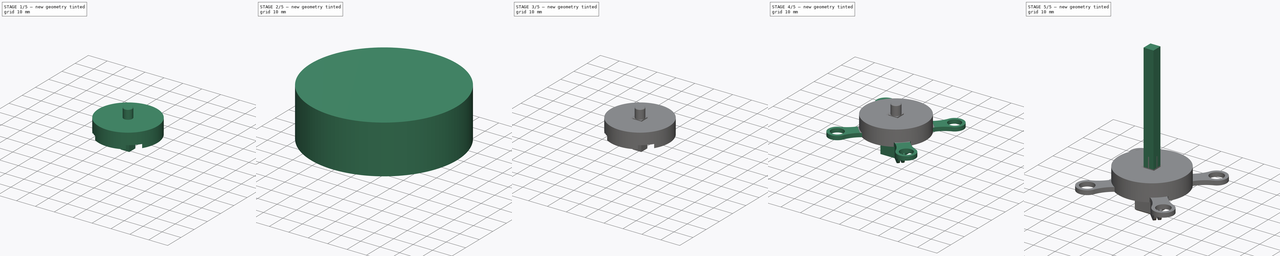
[diagram: build sequence overview — one tinted view per stage of 5, left to right]
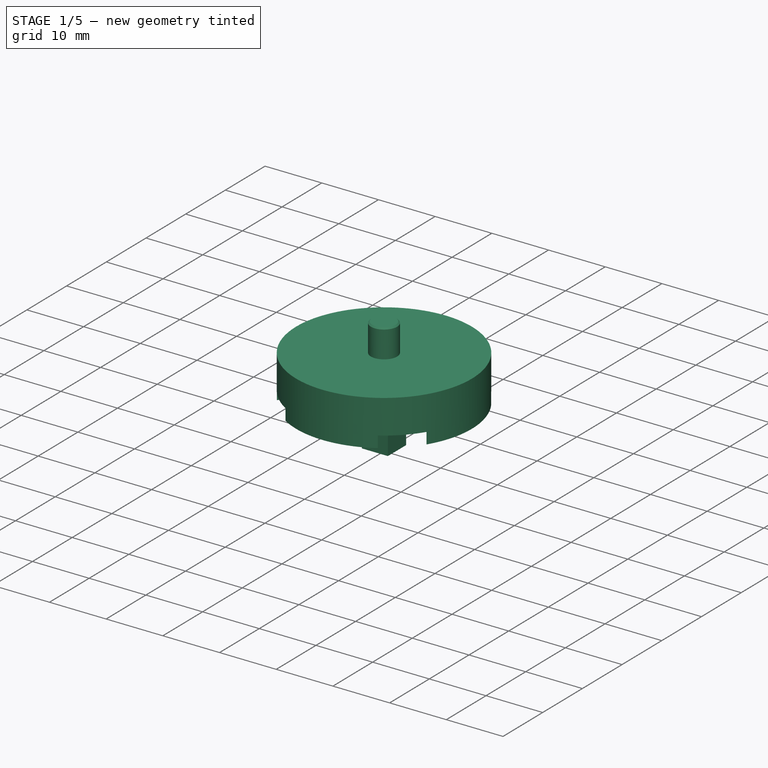
[diagram: stage 1 of 5 — iso view after this stage's code; geometry added in this stage tinted green]
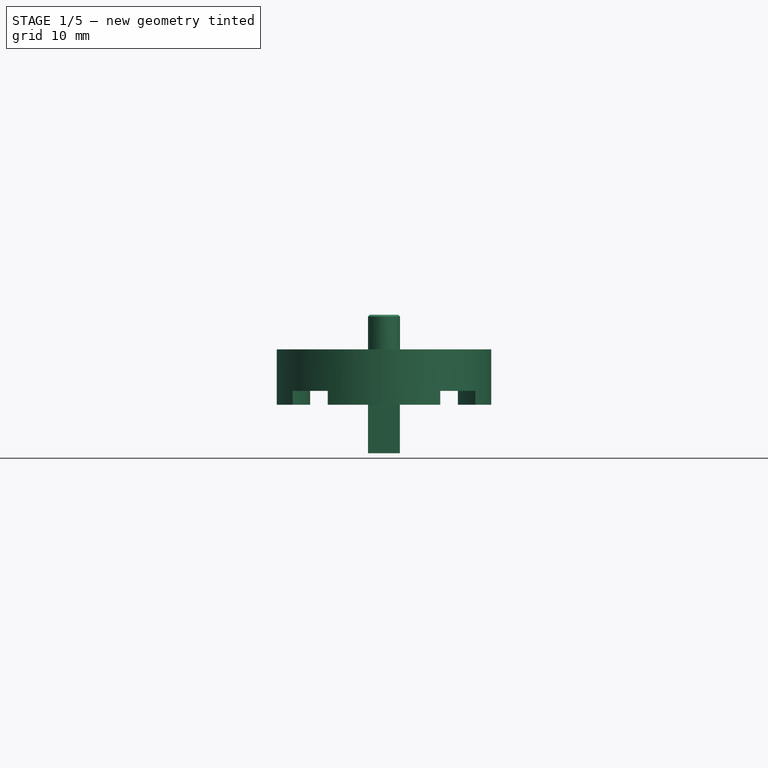
[diagram: stage 1 of 5 — front view after this stage's code; geometry added in this stage tinted green]
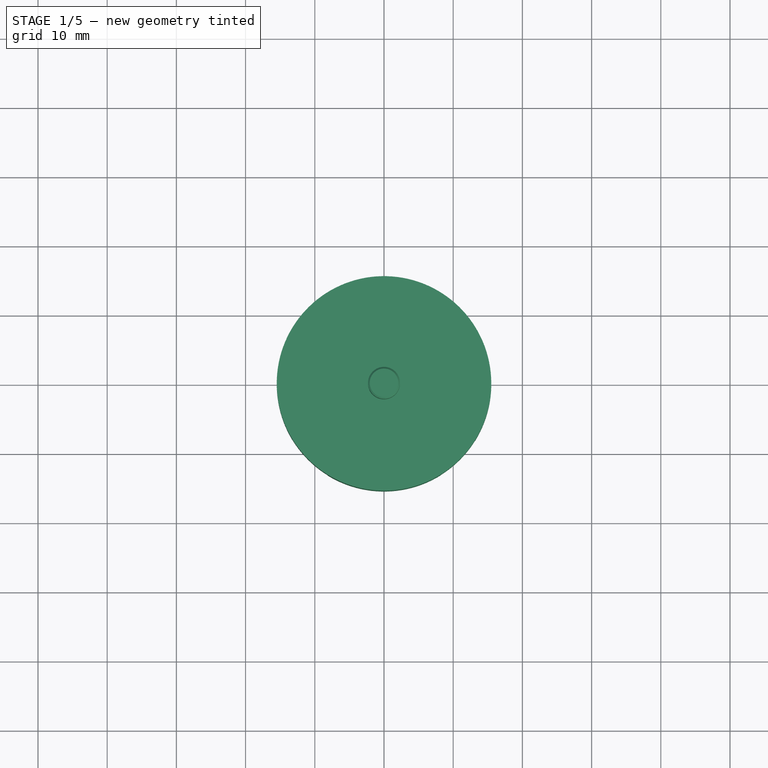
[diagram: stage 1 of 5 — top view after this stage's code; geometry added in this stage tinted green]
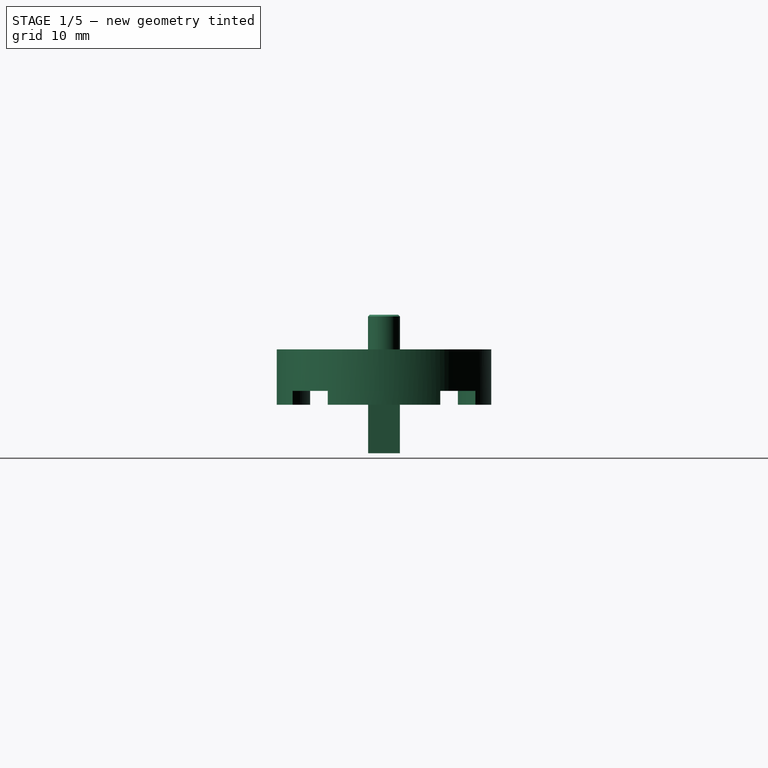
[diagram: stage 1 of 5 — right view after this stage's code; geometry added in this stage tinted green]
FCSTD DOCUMENT  (FreeCAD 0.18.4R)
Label: TCP
License: All rights reserved
LicenseURL: http://en.wikipedia.org/wiki/All_rights_reserved
objects: Sketcher::SketchObject×16, PartDesign::Pad×8, PartDesign::Pocket×8, PartDesign::Chamfer×6, PartDesign::Body×5, PartDesign::Plane×5, App::DocumentObjectGroup×2, PartDesign::FeatureBase×2, Part::Part2DObjectPython×2, PartDesign::ShapeBinder×1, Part::Helix×1, PartDesign::AdditiveBox×1, PartDesign::AdditiveCylinder×1, PartDesign::AdditivePipe×1
note: 76 computed .brp shape members not serialized (recipe doc carries the construction recipe); baked Part::Feature solids carry a one-line shape summary decoded from their .brp

FEATURE [PartDesign::ShapeBinder] CopyPocket004  label="ReferencePocket"
  TraceSupport = false
FEATURE [PartDesign::Plane] DatumPlane003  label="XMatingPlane"
  Length = 37.1442
  MapMode = 5
  Placement = pos=(0,0,-6) rot=(1,0,0;3.14159rad)
  ResizeMode = 0
  Support = -> [CopyPocket004]
  Width = 37.1645
FEATURE [Sketcher::SketchObject] Sketch014  label="Base"
  MapMode = 5
  Placement = pos=(0,0,-6) rot=(1,0,0;3.14159rad)
  Support = -> [DatumPlane003]
  sketch-geometry (1):
    g0: Circle CenterX=0 CenterY=0 CenterZ=0 NormalX=0 NormalY=0 NormalZ=1 AngleXU=0 Radius=15.5
  constraints (2):
    c: Coincident(g0,g-1)
    c: Diameter(g0) = 31
FEATURE [PartDesign::Pad] Pad005  label="BasePad001"
  Length = 6
  Length2 = 100
  Placement = pos=(0,0,-6) rot=(1,0,0;3.14159rad)
  Profile = -> Sketch014
  Reversed = true
  Type = 0
FEATURE [Sketcher::SketchObject] Sketch015  label="Grooves"
  MapMode = 5
  Placement = pos=(0,0,-6) rot=(1,0,0;3.14159rad)
  Support = -> [DatumPlane003]
  sketch-geometry (33):
    g0: Circle [constr] CenterX=0 CenterY=0 CenterZ=0 NormalX=0 NormalY=0 NormalZ=1 AngleXU=0 Radius=15.5
    g1: Circle [constr] CenterX=0 CenterY=0 CenterZ=0 NormalX=0 NormalY=0 NormalZ=1 AngleXU=0 Radius=25
    g2: LineSegment [constr] StartX=-26.467 StartY=26.467 StartZ=0 EndX=0 EndY=0 EndZ=0
    g3: LineSegment [constr] StartX=26.467 StartY=26.467 StartZ=0 EndX=0 EndY=0 EndZ=0
    g4: LineSegment [constr] StartX=26.467 StartY=-26.467 StartZ=0 EndX=0 EndY=0 EndZ=0
    g5: LineSegment [constr] StartX=-26.467 StartY=-26.467 StartZ=0 EndX=0 EndY=0 EndZ=0
    g6: Circle [constr] CenterX=-17.6777 CenterY=17.6777 CenterZ=0 NormalX=0 NormalY=0 NormalZ=1 AngleXU=0 Radius=4.5
    g7: Circle [constr] CenterX=17.6777 CenterY=17.6777 CenterZ=0 NormalX=0 NormalY=0 NormalZ=1 AngleXU=0 Radius=4.5
    g8: Circle [constr] CenterX=17.6777 CenterY=-17.6777 CenterZ=0 NormalX=0 NormalY=0 NormalZ=1 AngleXU=0 Radius=4.5
    g9: Circle [constr] CenterX=-17.6777 CenterY=-17.6777 CenterZ=0 NormalX=0 NormalY=0 NormalZ=1 AngleXU=0 Radius=4.5
    g10: LineSegment [constr] StartX=5.4e-15 StartY=37.43 StartZ=0 EndX=0 EndY=0 EndZ=0
    g11: LineSegment [constr] StartX=-37.43 StartY=5.4e-15 StartZ=0 EndX=0 EndY=0 EndZ=0
    g12: LineSegment [constr] StartX=-5.4e-15 StartY=-37.43 StartZ=0 EndX=0 EndY=0 EndZ=0
    g13: LineSegment [constr] StartX=37.43 StartY=-5.4e-15 StartZ=0 EndX=0 EndY=0 EndZ=0
    g14: ArcOfCircle [constr] CenterX=-25 CenterY=3.6e-15 CenterZ=0 NormalX=0 NormalY=0 NormalZ=1 AngleXU=0 Radius=14.7335 StartAngle=5.1611 EndAngle=7.40527
    g15: ArcOfCircle CenterX=-25 CenterY=3.6e-15 CenterZ=0 NormalX=0 NormalY=0 NormalZ=1 AngleXU=0 Radius=14.3335 StartAngle=5.67998 EndAngle=6.88639
    g16: ArcOfCircle CenterX=0 CenterY=0 CenterZ=0 NormalX=0 NormalY=0 NormalZ=1 AngleXU=0 Radius=15.5 StartAngle=2.58936 EndAngle=3.69383
    g17: ArcOfCircle CenterX=-4.7e-15 CenterY=-25 CenterZ=0 NormalX=0 NormalY=0 NormalZ=1 AngleXU=0 Radius=14.3335 StartAngle=0.967595 EndAngle=2.174
    g18: ArcOfCircle CenterX=0 CenterY=0 CenterZ=0 NormalX=0 NormalY=0 NormalZ=1 AngleXU=0 Radius=15.5 StartAngle=4.16016 EndAngle=5.26462
    g19: ArcOfCircle CenterX=0 CenterY=0 CenterZ=0 NormalX=0 NormalY=0 NormalZ=1 AngleXU=0 Radius=15.5 StartAngle=5.73095 EndAngle=6.83542
    g20: ArcOfCircle CenterX=25 CenterY=-2.3e-15 CenterZ=0 NormalX=0 NormalY=0 NormalZ=1 AngleXU=0 Radius=14.3335 StartAngle=2.53839 EndAngle=3.74479
    g21: ArcOfCircle CenterX=0 CenterY=0 CenterZ=0 NormalX=0 NormalY=0 NormalZ=1 AngleXU=0 Radius=15.5 StartAngle=1.01856 EndAngle=2.12303
    g22: ArcOfCircle CenterX=1.4e-15 CenterY=25 CenterZ=0 NormalX=0 NormalY=0 NormalZ=1 AngleXU=0 Radius=14.3335 StartAngle=4.10919 EndAngle=5.31559
    g23: LineSegment [constr] StartX=-8.13114 StartY=-13.196 StartZ=0 EndX=-1.8e-15 EndY=-13.196 EndZ=0
    g24: LineSegment [constr] StartX=8.13114 StartY=-13.196 StartZ=0 EndX=-1.8e-15 EndY=-13.196 EndZ=0
    g25: LineSegment [constr] StartX=-13.196 StartY=8.13114 StartZ=0 EndX=-13.196 EndY=3.6e-15 EndZ=0
    g26: LineSegment [constr] StartX=-13.196 StartY=3.7e-15 StartZ=0 EndX=-13.196 EndY=-8.13114 EndZ=0
    g27: LineSegment [constr] StartX=-8.13114 StartY=13.196 StartZ=0 EndX=1.8e-15 EndY=13.196 EndZ=0
    g28: LineSegment [constr] StartX=1.9e-15 StartY=13.196 StartZ=0 EndX=8.13114 EndY=13.196 EndZ=0
    g29: LineSegment [constr] StartX=13.196 StartY=8.13114 StartZ=0 EndX=13.196 EndY=-1.8e-15 EndZ=0
    g30: LineSegment [constr] StartX=13.196 StartY=-1.9e-15 StartZ=0 EndX=13.196 EndY=-8.13114 EndZ=0
    g31: LineSegment [constr] StartX=-18.6085 StartY=13.275 StartZ=0 EndX=-18.6085 EndY=-13.275 EndZ=0
    g32: LineSegment [constr] StartX=-10.6665 StartY=1.5e-15 StartZ=0 EndX=-10.2665 EndY=1.5e-15 EndZ=0
  constraints (98):
    c: Coincident(g0,g-1)
    c: Diameter(g0) = 31
    c: Coincident(g1,g-1)
    c: Diameter(g1) = 50
    c: Coincident(g4,g-1)
    c: Coincident(g3,g-1)
    c: Coincident(g2,g-1)
    c: Coincident(g5,g-1)
    c: Equal(g5,g4)
    c: Equal(g4,g3)
    c: Equal(g3,g2)
    c: Angle(g-2,g2) = 0.785398
    c: Angle(g2,g5) = 1.5708
    c: Angle(g5,g4) = 1.5708
    c: Angle(g4,g3) = 1.5708
    c: PointOnObject(g7,g3)
    c: PointOnObject(g7,g1)
    c: PointOnObject(g8,g4)
    c: PointOnObject(g8,g1)
    c: PointOnObject(g9,g5)
    c: PointOnObject(g9,g1)
    c: PointOnObject(g6,g2)
    c: PointOnObject(g6,g1)
    c: Equal(g6,g7)
    c: Equal(g7,g8)
    c: Equal(g8,g9)
    c: Diameter(g6) = 9
    c: Coincident(g10,g-1)
    c: Coincident(g13,g-1)
    c: Coincident(g12,g-1)
    c: Coincident(g11,g-1)
    c: Angle(g10,g2) = 0.785398
    c: Perpendicular(g11,g10)
    c: Perpendicular(g12,g13)
    c: Parallel(g12,g10)
    c: Equal(g13,g10)
    c: Equal(g10,g11)
    c: Equal(g11,g12)
    c: Equal(g2,g10)
    c: Distance(g11) = 37.43
    c: PointOnObject(g14,g11)
    c: PointOnObject(g14,g1)
    c: Coincident(g15,g14)
    c: Coincident(g16,g-1)
    c: Coincident(g18,g16)
    c: PointOnObject(g18,g0)
    c: Coincident(g19,g16)
    c: Coincident(g21,g16)
    c: Coincident(g17,g18)
    c: Coincident(g17,g18)
    c: Coincident(g24,g17)
    c: Coincident(g23,g17)
    c: Coincident(g23,g24)
    c: PointOnObject(g23,g12)
    c: Parallel(g23,g24)
    c: Perpendicular(g12,g24)
    c: Coincident(g15,g16)
    c: Coincident(g15,g16)
    c: Coincident(g26,g25)
    c: Equal(g26,g25)
    c: Parallel(g26,g25)
    c: Coincident(g25,g15)
    c: Coincident(g26,g15)
    c: Equal(g25,g23)
    c: PointOnObject(g15,g0)
    c: Coincident(g22,g21)
    c: Coincident(g22,g21)
    c: Coincident(g28,g27)
    c: Equal(g27,g28)
    c: Coincident(g28,g21)
    c: Coincident(g27,g21)
    c: Parallel(g27,g28)
    c: Equal(g27,g25)
    c: PointOnObject(g21,g0)
    c: Coincident(g19,g20)
    c: Coincident(g20,g19)
    c: Coincident(g29,g30)
    c: Coincident(g29,g19)
    c: Coincident(g30,g19)
    c: Equal(g30,g29)
    c: Parallel(g29,g30)
    c: Equal(g29,g28)
    c: PointOnObject(g19,g0)
    c: PointOnObject(g17,g1)
    c: Coincident(g31,g14)
    c: Coincident(g31,g14)
    c: PointOnObject(g14,g6)
    c: PointOnObject(g14,g9)
    c: Distance(g31) = 26.55
    c: Horizontal(g32)
    c: PointOnObject(g32,g14)
    c: PointOnObject(g32,g15)
    c: Distance(g32) = 0.4
    c: PointOnObject(g32,g11)
    c: PointOnObject(g27,g10)
    c: PointOnObject(g29,g13)
    c: PointOnObject(g20,g1)
    c: PointOnObject(g22,g1)
FEATURE [PartDesign::Pad] Pad006  label="GroovePad"
  BaseFeature = -> Pad005
  Length = 2
  Length2 = 100
  Placement = pos=(0,0,-6) rot=(1,0,0;3.14159rad)
  Profile = -> Sketch015
  Type = 0
FEATURE [PartDesign::Body] Body002  label="AsteroidMountBottom"
  Group = -> [DatumPlane003,CopyPocket004,Sketch014,Pad005,Sketch015,Pad006,Sketch016,Pocket005,ShapeString001,Pocket007,Chamfer003,Chamfer004]
  Origin = -> Origin002
  Tip = -> Chamfer004
FEATURE [App::DocumentObjectGroup] Group001  label="TCP_Saddle_Asteroid"
  Group = -> [DatumPlane,Body001,Body002]
FEATURE [Part::Helix] Helix
  Angle = 0
  AttacherType = Attacher::AttachEngine3D
  Height = 4
  LocalCoord = 0
  Pitch = 1
  Placement = pos=(0,0,0.3) rot=(0,0,1;0rad)
  Radius = 3.17
  Style = 1
FEATURE [PartDesign::FeatureBase] BaseFeature001
  BaseFeature = -> Helix
FEATURE [PartDesign::AdditiveBox] Box
  AttacherType = Attacher::AttachEngine3D
  BaseFeature = -> BaseFeature001
  Height = 15
  Length = 4.6
  MapMode = 5
  Placement = pos=(-2.30278,-2.29874,-15) rot=(0,0,1;0rad)
  Width = 4.6
FEATURE [PartDesign::AdditiveCylinder] Cylinder
  Angle = 360
  AttacherType = Attacher::AttachEngine3D
  BaseFeature = -> Box
  Height = 5
  Radius = 2.31
FEATURE [PartDesign::Chamfer] Chamfer005
  Base = -> Cylinder [Edge31]
  BaseFeature = -> Cylinder
  Size = 0.25
FEATURE [Sketcher::SketchObject] Sketch018
  ExternalGeometry = -> [Chamfer005]
  Placement = pos=(0,0,0) rot=(-1,0,0;4.71239rad)
  sketch-geometry (3):
    g0: LineSegment StartX=2.31 StartY=4.75 StartZ=0 EndX=2.31 EndY=3.75 EndZ=0
    g1: LineSegment StartX=2.31 StartY=3.75 StartZ=0 EndX=3.17603 EndY=4.25 EndZ=0
    g2: LineSegment StartX=3.17603 StartY=4.25 StartZ=0 EndX=2.31 EndY=4.75 EndZ=0
  constraints (9):
    c: Vertical(g0)
    c: Coincident(g0,g2)
    c: Coincident(g0,g1)
    c: Coincident(g1,g2)
    c: Equal(g0,g2)
    c: Equal(g2,g1)
    c: PointOnObject(g0,g-3)
    c: PointOnObject(g0,g-4)
    c: Distance(g2) = 1
FEATURE [PartDesign::AdditivePipe] AdditivePipe
  AuxilleryCurvelinear = true
  AuxillerySpineTangent = false
  BaseFeature = -> Chamfer005
  Binormal = (0,0,0)
  Mode = 2
  Profile = -> Sketch018
  Spine = -> BaseFeature001
  SpineTangent = false
  Transformation = 0
  Transition = 0
FEATURE [PartDesign::Body] Body005  label="Screw"
  BaseFeature = -> Helix
  Group = -> [BaseFeature001,Box,Cylinder,Chamfer005,Sketch018,AdditivePipe]
  Origin = -> Origin005
  Tip = -> AdditivePipe
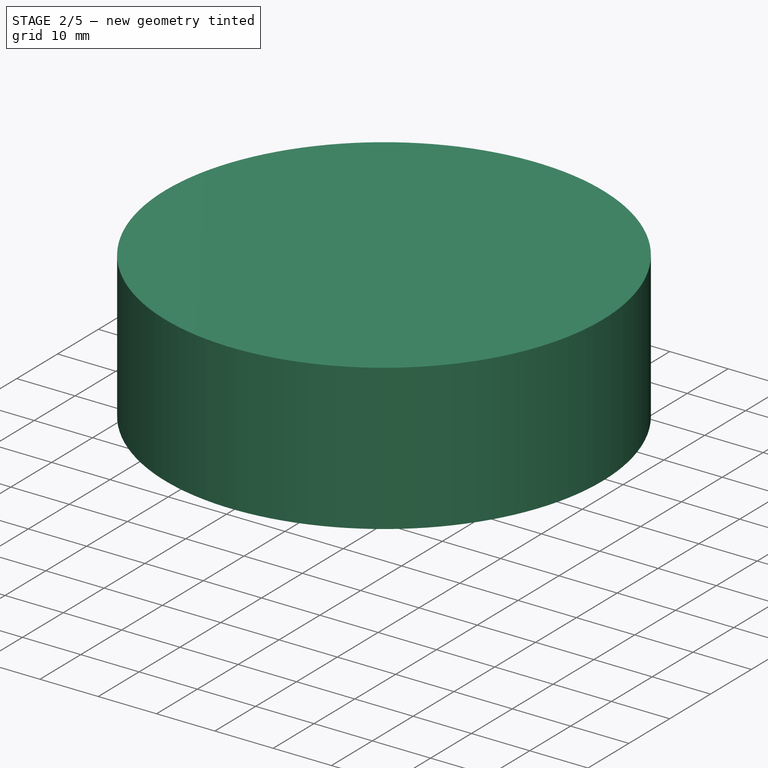
[diagram: stage 2 of 5 — iso view after this stage's code; geometry added in this stage tinted green]
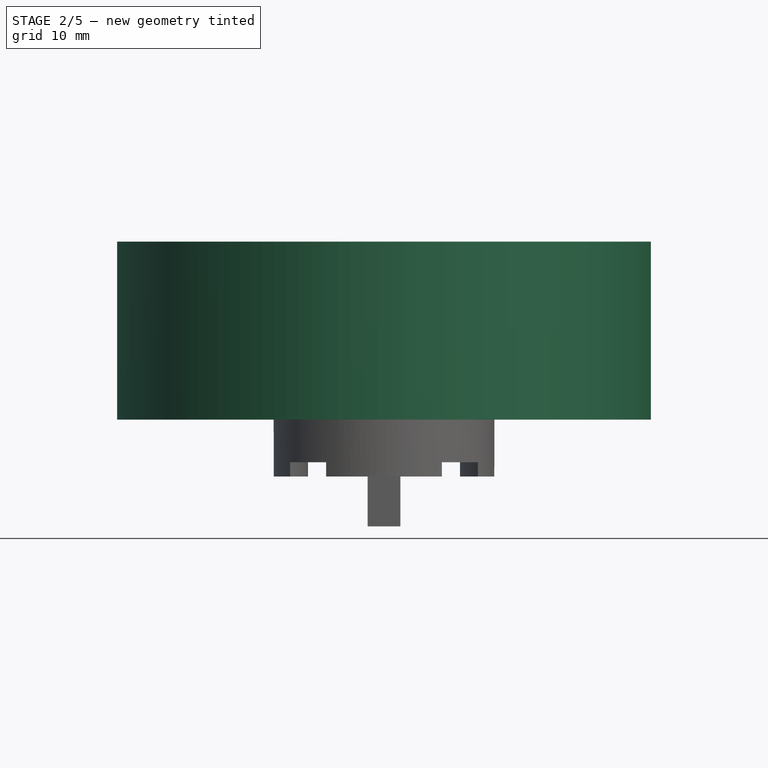
[diagram: stage 2 of 5 — front view after this stage's code; geometry added in this stage tinted green]
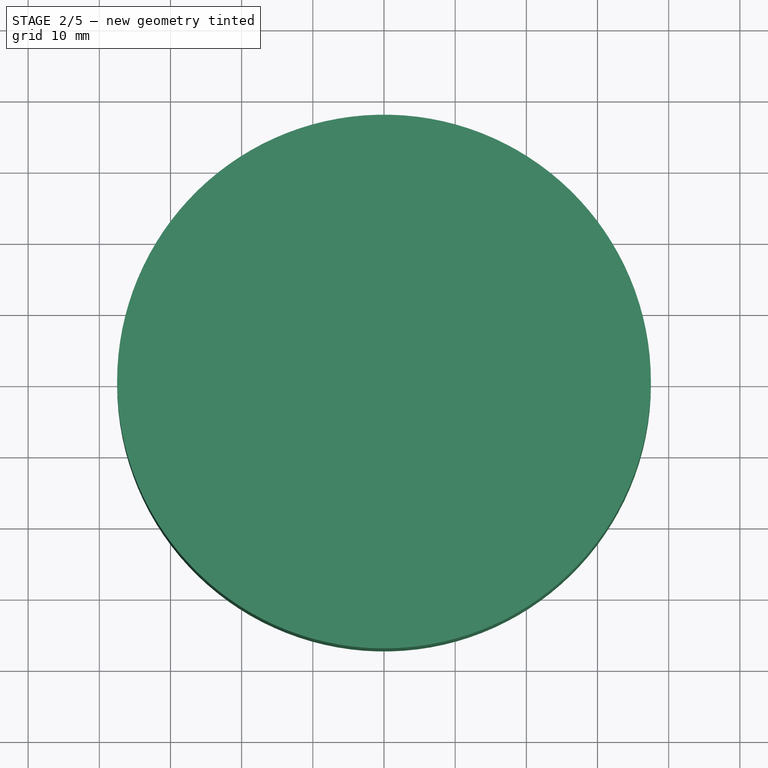
[diagram: stage 2 of 5 — top view after this stage's code; geometry added in this stage tinted green]
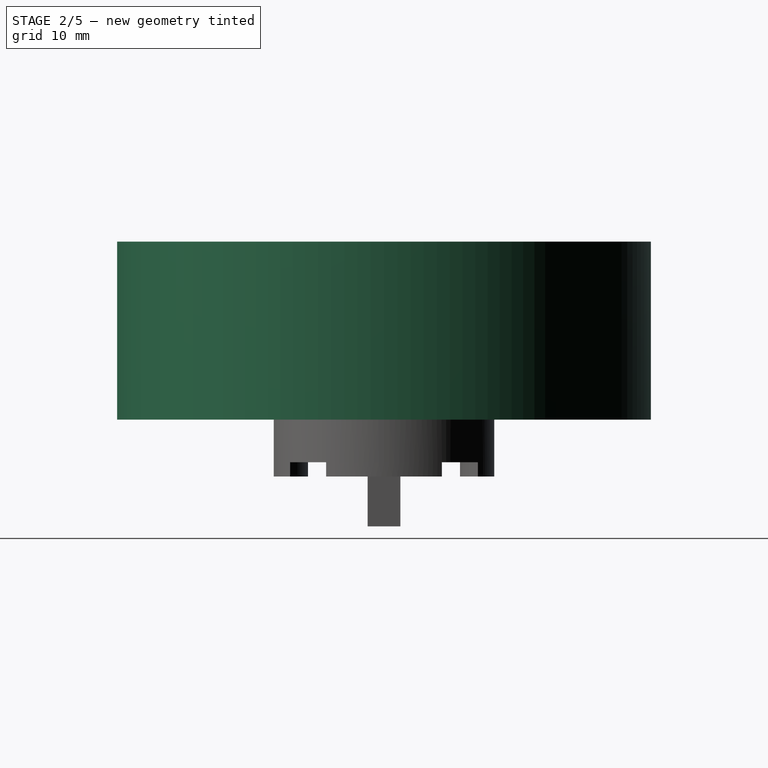
[diagram: stage 2 of 5 — right view after this stage's code; geometry added in this stage tinted green]
FEATURE [Sketcher::SketchObject] Sketch001  label="TCP_Blueprint_TOP"
  MapMode = 2
  Support = -> [Sketch001]
  sketch-geometry (13):
    g0: Circle CenterX=0 CenterY=0 CenterZ=0 NormalX=0 NormalY=0 NormalZ=1 AngleXU=0 Radius=37.5
    g1: Circle CenterX=0 CenterY=0 CenterZ=0 NormalX=0 NormalY=0 NormalZ=1 AngleXU=0 Radius=31.5
    g2: Circle CenterX=0 CenterY=0 CenterZ=0 NormalX=0 NormalY=0 NormalZ=1 AngleXU=0 Radius=15.75
    g3: LineSegment [constr] StartX=0 StartY=50 StartZ=0 EndX=0 EndY=0 EndZ=0
    g4: LineSegment [constr] StartX=-35.3553 StartY=35.3553 StartZ=0 EndX=0 EndY=0 EndZ=0
    g5: LineSegment [constr] StartX=-35.3553 StartY=-35.3553 StartZ=0 EndX=0 EndY=0 EndZ=0
    g6: LineSegment [constr] StartX=35.3553 StartY=-35.3553 StartZ=0 EndX=0 EndY=0 EndZ=0
    g7: LineSegment [constr] StartX=0 StartY=0 StartZ=0 EndX=35.3553 EndY=35.3553 EndZ=0
    g8: Circle [constr] CenterX=0 CenterY=0 CenterZ=0 NormalX=0 NormalY=0 NormalZ=1 AngleXU=0 Radius=25
    g9: Circle CenterX=-17.6777 CenterY=17.6777 CenterZ=0 NormalX=0 NormalY=0 NormalZ=1 AngleXU=0 Radius=3
    g10: Circle CenterX=-17.6777 CenterY=-17.6777 CenterZ=0 NormalX=0 NormalY=0 NormalZ=1 AngleXU=0 Radius=3
    g11: Circle CenterX=17.6777 CenterY=17.6777 CenterZ=0 NormalX=0 NormalY=0 NormalZ=1 AngleXU=0 Radius=3
    g12: Circle CenterX=17.6777 CenterY=-17.6777 CenterZ=0 NormalX=0 NormalY=0 NormalZ=1 AngleXU=0 Radius=3
  constraints (36):
    c: DistanceX(g0) = 0
    c: DistanceY(g0) = 0
    c: Diameter(g0) = 75
    c: Coincident(g1,g0)
    c: Diameter(g1) = 63
    c: Coincident(g2,g0)
    c: Diameter(g2) = 31.5
    c: Coincident(g3,g0)
    c: PointOnObject(g3,g-2)
    c: Coincident(g4,g0)
    c: Angle(g3,g4) = 0.785398
    c: Coincident(g5,g0)
    c: Angle(g4,g5) = 1.5708
    c: Coincident(g6,g0)
    c: Angle(g5,g6) = 1.5708
    c: Coincident(g7,g0)
    c: Angle(g6,g7) = 1.5708
    c: Coincident(g8,g0)
    c: Diameter(g8) = 50
    c: Distance(g4) = 50
    c: Equal(g4,g3)
    c: Equal(g3,g7)
    c: Equal(g7,g6)
    c: Equal(g6,g5)
    c: PointOnObject(g9,g4)
    c: PointOnObject(g9,g8)
    c: Diameter(g9) = 6
    c: PointOnObject(g10,g5)
    c: PointOnObject(g10,g8)
    c: PointOnObject(g11,g7)
    c: PointOnObject(g11,g8)
    c: PointOnObject(g12,g6)
    c: PointOnObject(g12,g8)
    c: Equal(g9,g10)
    c: Equal(g10,g12)
    c: Equal(g12,g11)
FEATURE [Sketcher::SketchObject] Sketch
  MapMode = 5
  Support = -> [XY_Plane001]
  sketch-geometry (1):
    g0: Circle CenterX=0 CenterY=0 CenterZ=0 NormalX=0 NormalY=0 NormalZ=1 AngleXU=0 Radius=37.5
  constraints (2):
    c: Coincident(g0,g-1)
    c: Diameter(g0) = 75
FEATURE [PartDesign::Pad] Pad
  Length = 25
  Length2 = 100
  Profile = -> Sketch
  Type = 0
FEATURE [Sketcher::SketchObject] Sketch016  label="SquareGroove"
  MapMode = 5
  Placement = pos=(0,0,-6) rot=(1,0,0;3.14159rad)
  Support = -> [DatumPlane003]
  sketch-geometry (4):
    g0: LineSegment StartX=-2.5 StartY=2.5 StartZ=0 EndX=2.5 EndY=2.5 EndZ=0
    g1: LineSegment StartX=2.5 StartY=2.5 StartZ=0 EndX=2.5 EndY=-2.5 EndZ=0
    g2: LineSegment StartX=2.5 StartY=-2.5 StartZ=0 EndX=-2.5 EndY=-2.5 EndZ=0
    g3: LineSegment StartX=-2.5 StartY=-2.5 StartZ=0 EndX=-2.5 EndY=2.5 EndZ=0
  constraints (14):
    c: Coincident(g0,g1)
    c: Coincident(g1,g2)
    c: Coincident(g2,g3)
    c: Coincident(g3,g0)
    c: Horizontal(g0)
    c: Horizontal(g2)
    c: Vertical(g1)
    c: Vertical(g3)
    c: DistanceX(g-1,g0) = 2.5
    c: DistanceY(g-1,g0) = 2.5
    c: Equal(g0,g3)
    c: Equal(g3,g2)
    c: Equal(g2,g1)
    c: Distance(g2) = 5
FEATURE [PartDesign::Pocket] Pocket005  label="SquareHolePocket"
  BaseFeature = -> Pad006
  Length = 5
  Length2 = 100
  Placement = pos=(0,0,-6) rot=(1,0,0;3.14159rad)
  Profile = -> Sketch016
  Type = 1
FEATURE [PartDesign::Body] Body001  label="AsteroidMountTop"
  BaseFeature = -> DatumPlane
  Group = -> [BaseFeature,CopyCopyDatumPlane,Sketch008,Pad002,Sketch009,Pad003,Sketch010,Pocket002,DatumPlane001,Sketch011,Pad004,DatumPlane002,Sketch012,Pocket003,Sketch013,Pocket004,ShapeString,Pocket006,Chamfer,Chamfer001,Chamfer002]
  Origin = -> Origin
  Tip = -> Chamfer002
FEATURE [Part::Part2DObjectPython] ShapeString001  # Draft 2D object (typed FeaturePython)
  FontFile = <userpath>/AsteroidLab/Fonts/Ubuntu-B.ttf
  Placement = pos=(-10.0758,9.15377,-6) rot=(1,0,0;3.14159rad)
  Size = 3
  String = V2.1
  Support = -> [Pocket005]
  Tracking = 0
FEATURE [PartDesign::Pocket] Pocket007  label="VersionLabel"
  BaseFeature = -> Pocket005
  Length = 0.5
  Length2 = 100
  Placement = pos=(0,0,-6) rot=(1,0,0;3.14159rad)
  Profile = -> ShapeString001
  Type = 0
FEATURE [PartDesign::Chamfer] Chamfer003
  Base = -> Pocket007 [Edge93,Edge91,Edge94,Edge92]
  BaseFeature = -> Pocket007
  Placement = pos=(0,0,-6) rot=(1,0,0;3.14159rad)
  Size = 0.5
FEATURE [PartDesign::Chamfer] Chamfer004
  Base = -> Chamfer003 [Edge257,Edge262,Edge263,Edge259]
  BaseFeature = -> Chamfer003
  Placement = pos=(0,0,-6) rot=(1,0,0;3.14159rad)
  Size = 0.5
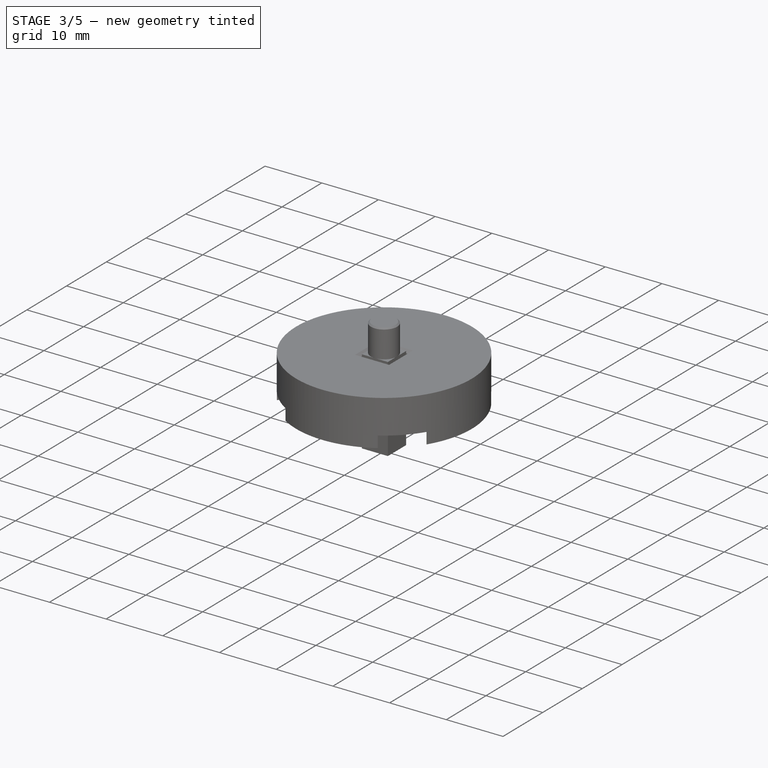
[diagram: stage 3 of 5 — iso view after this stage's code; geometry added in this stage tinted green]
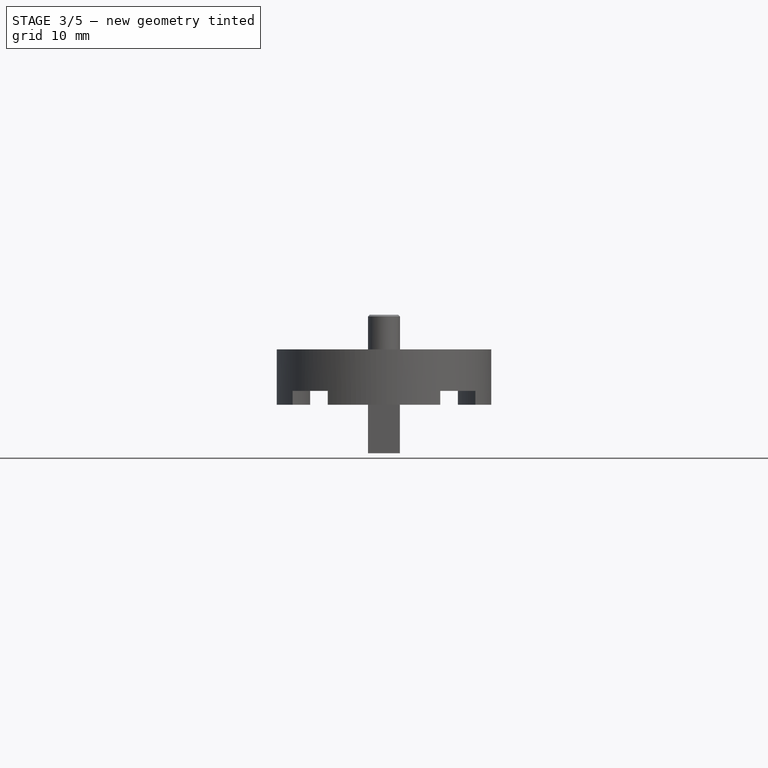
[diagram: stage 3 of 5 — front view after this stage's code; geometry added in this stage tinted green]
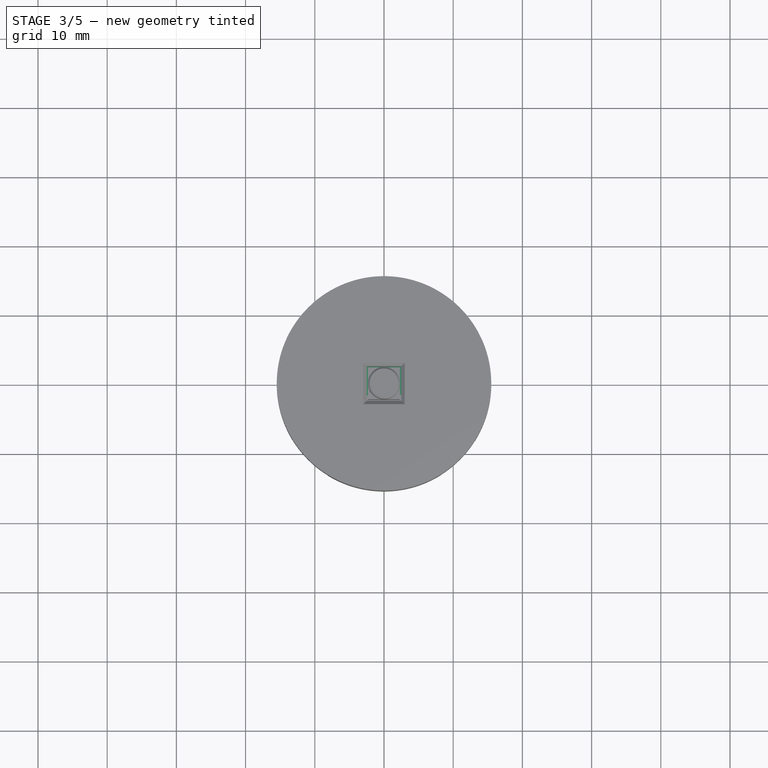
[diagram: stage 3 of 5 — top view after this stage's code; geometry added in this stage tinted green]
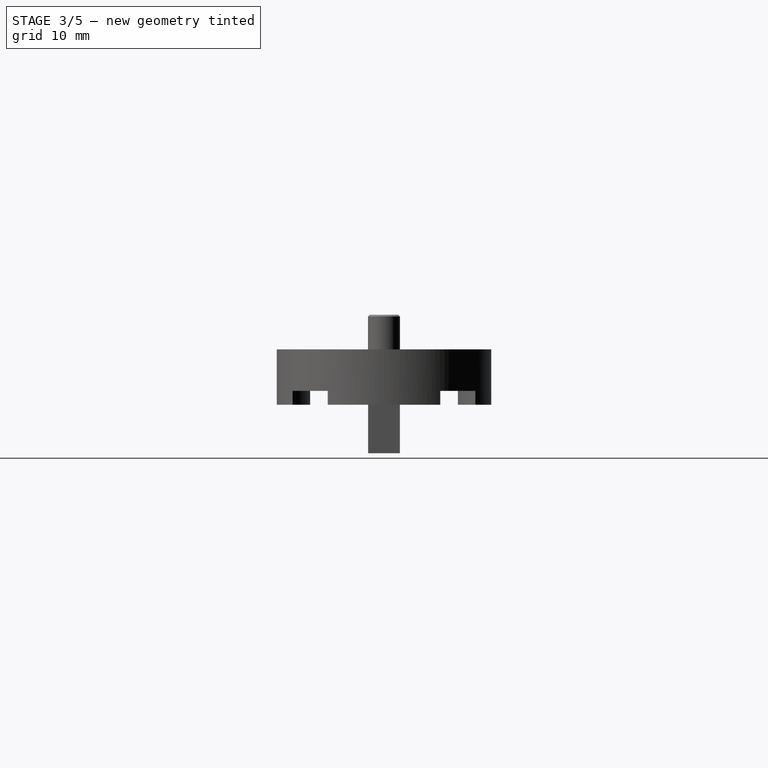
[diagram: stage 3 of 5 — right view after this stage's code; geometry added in this stage tinted green]
FEATURE [Sketcher::SketchObject] Sketch002
  MapMode = 5
  Support = -> [XY_Plane001]
  sketch-geometry (1):
    g0: Circle CenterX=0 CenterY=0 CenterZ=0 NormalX=0 NormalY=0 NormalZ=1 AngleXU=0 Radius=31.5
  constraints (2):
    c: Coincident(g0,g-1)
    c: Diameter(g0) = 63
FEATURE [PartDesign::Pad] Pad001
  BaseFeature = -> Pad
  Length = 6
  Length2 = 100
  Profile = -> Sketch002
  Reversed = true
  Type = 0
FEATURE [Sketcher::SketchObject] Sketch003
  MapMode = 5
  Support = -> [XY_Plane001]
  sketch-geometry (1):
    g0: Circle CenterX=0 CenterY=0 CenterZ=0 NormalX=0 NormalY=0 NormalZ=1 AngleXU=0 Radius=15.75
  constraints (2):
    c: Coincident(g0,g-1)
    c: Diameter(g0) = 31.5
FEATURE [PartDesign::Pocket] Pocket
  BaseFeature = -> Pad001
  Length = 6
  Length2 = 100
  Profile = -> Sketch003
  Type = 0
FEATURE [Sketcher::SketchObject] Sketch004
  MapMode = 5
  Support = -> [XY_Plane001]
  sketch-geometry (10):
    g0: Circle [constr] CenterX=0 CenterY=0 CenterZ=0 NormalX=0 NormalY=0 NormalZ=1 AngleXU=0 Radius=25
    g1: LineSegment [constr] StartX=0 StartY=100 StartZ=0 EndX=0 EndY=0 EndZ=0
    g2: LineSegment [constr] StartX=-70.7107 StartY=70.7107 StartZ=0 EndX=0 EndY=0 EndZ=0
    g3: LineSegment [constr] StartX=0 StartY=0 StartZ=0 EndX=-70.7107 EndY=-70.7107 EndZ=0
    g4: LineSegment [constr] StartX=0 StartY=0 StartZ=0 EndX=70.7107 EndY=70.7107 EndZ=0
    g5: LineSegment [constr] StartX=0 StartY=0 StartZ=0 EndX=70.7107 EndY=-70.7107 EndZ=0
    g6: Circle CenterX=-17.6777 CenterY=17.6777 CenterZ=0 NormalX=0 NormalY=0 NormalZ=1 AngleXU=0 Radius=3
    g7: Circle CenterX=-17.6777 CenterY=-17.6777 CenterZ=0 NormalX=0 NormalY=0 NormalZ=1 AngleXU=0 Radius=3
    g8: Circle CenterX=17.6777 CenterY=17.6777 CenterZ=0 NormalX=0 NormalY=0 NormalZ=1 AngleXU=0 Radius=3
    g9: Circle CenterX=17.6777 CenterY=-17.6777 CenterZ=0 NormalX=0 NormalY=0 NormalZ=1 AngleXU=0 Radius=3
  constraints (29):
    c: Coincident(g-1,g0)
    c: Diameter(g0) = 50
    c: Coincident(g1,g-1)
    c: PointOnObject(g1,g-2)
    c: Coincident(g2,g-1)
    c: Coincident(g3,g-1)
    c: Coincident(g4,g-1)
    c: Coincident(g5,g-1)
    c: Equal(g5,g4)
    c: Equal(g4,g3)
    c: Equal(g3,g2)
    c: Equal(g2,g1)
    c: Distance(g1) = 100
    c: Angle(g1,g2) = 0.785398
    c: Angle(g2,g3) = 1.5708
    c: Angle(g3,g5) = 1.5708
    c: Angle(g5,g4) = 1.5708
    c: PointOnObject(g6,g2)
    c: PointOnObject(g6,g0)
    c: PointOnObject(g7,g3)
    c: PointOnObject(g7,g0)
    c: PointOnObject(g9,g5)
    c: PointOnObject(g9,g0)
    c: PointOnObject(g8,g4)
    c: PointOnObject(g8,g0)
    c: Diameter(g8) = 6
    c: Equal(g6,g7)
    c: Equal(g7,g9)
    c: Equal(g9,g8)
FEATURE [PartDesign::Pocket] Pocket001
  BaseFeature = -> Pocket
  Length = 6
  Length2 = 100
  Profile = -> Sketch004
  Type = 0
FEATURE [PartDesign::Body] Body  label="TCP_Mount_Part"
  Group = -> [Sketch,Pad,Sketch002,Pad001,Sketch003,Pocket,Sketch004,Pocket001]
  Origin = -> Origin001
  Tip = -> Pocket001
FEATURE [App::DocumentObjectGroup] Group  label="TCP_Mount"
  Group = -> [Body,Sketch001]
FEATURE [PartDesign::Plane] CopyCopyDatumPlane  label="BasePlane"
  Length = 53.4857
  Placement = pos=(0,0,-6) rot=(1,0,0;3.14159rad)
  ResizeMode = 0
  Width = 53.4857
FEATURE [Sketcher::SketchObject] Sketch008  label="BaseCylinder"
  MapMode = 5
  Placement = pos=(0,0,-6) rot=(1,0,0;3.14159rad)
  Support = -> [CopyCopyDatumPlane]
  sketch-geometry (1):
    g0: Circle CenterX=0 CenterY=0 CenterZ=0 NormalX=0 NormalY=0 NormalZ=1 AngleXU=0 Radius=5
  constraints (2):
    c: Coincident(g0,g-1)
    c: Diameter(g0) = 10
FEATURE [PartDesign::Plane] DatumPlane
  Length = 53.4857
  MapMode = 5
  Placement = pos=(0,0,-6) rot=(1,0,0;3.14159rad)
  ResizeMode = 0
  Support = -> [Pocket001]
  Width = 53.4857
FEATURE [PartDesign::FeatureBase] BaseFeature
  BaseFeature = -> DatumPlane
FEATURE [PartDesign::Pad] Pad002  label="BasePad"
  BaseFeature = -> BaseFeature
  Length = 1
  Length2 = 100
  Profile = -> Sketch008
  Type = 0
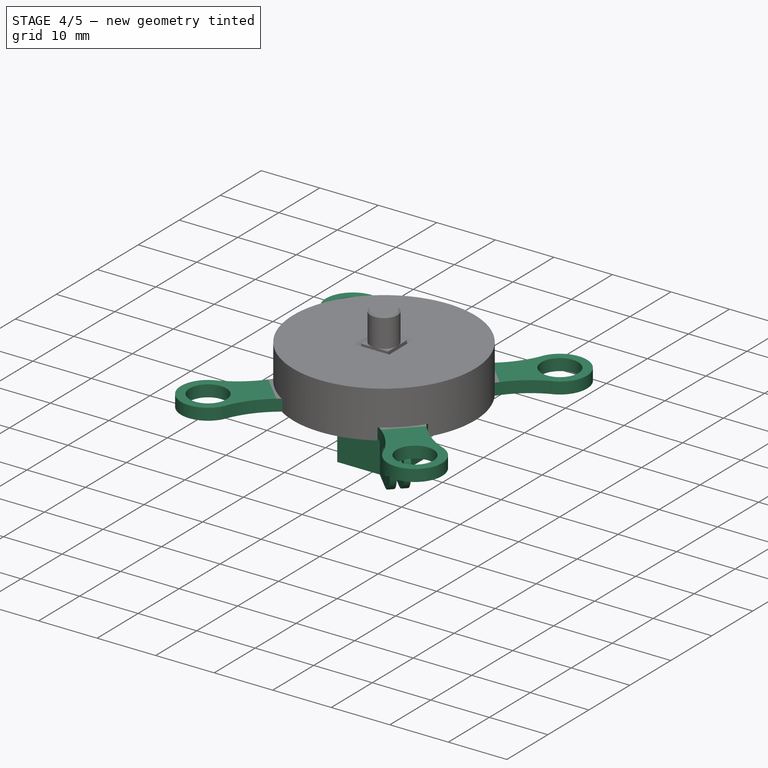
[diagram: stage 4 of 5 — iso view after this stage's code; geometry added in this stage tinted green]
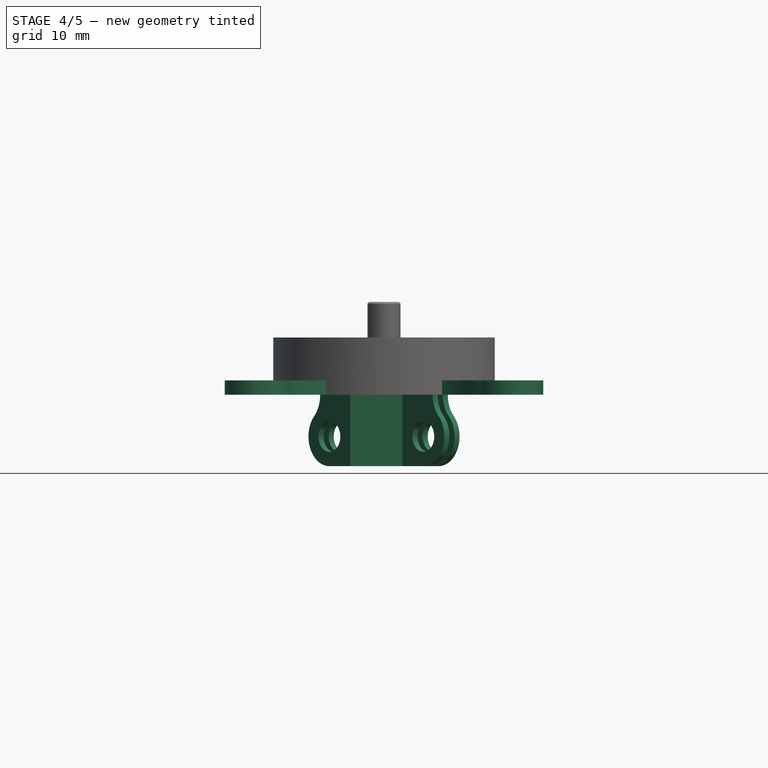
[diagram: stage 4 of 5 — front view after this stage's code; geometry added in this stage tinted green]
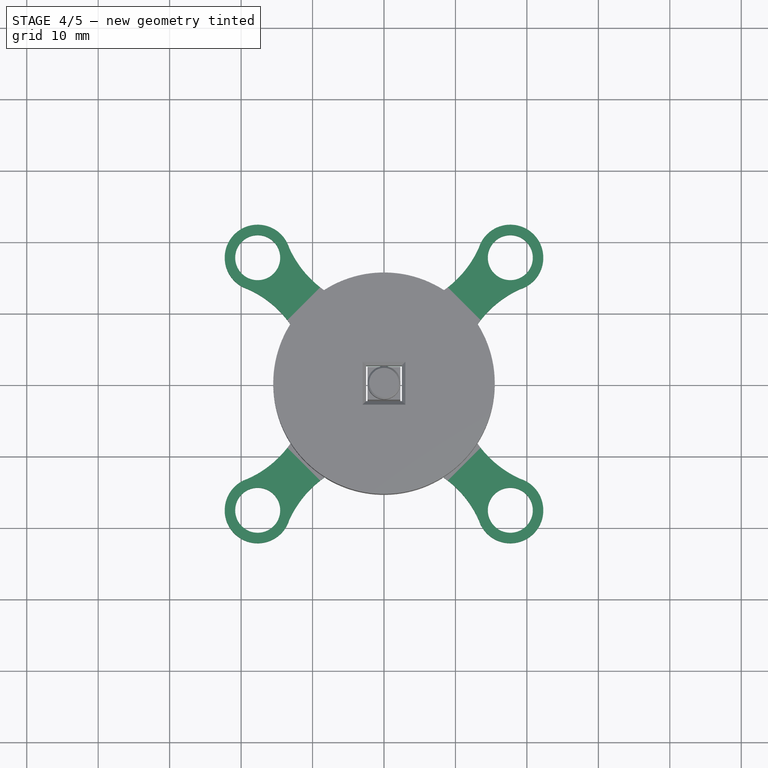
[diagram: stage 4 of 5 — top view after this stage's code; geometry added in this stage tinted green]
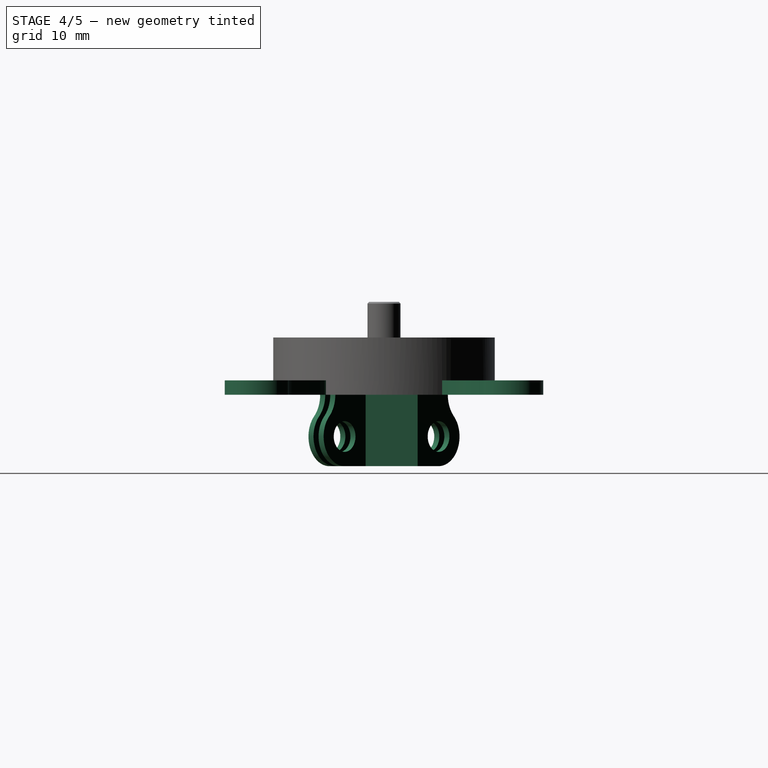
[diagram: stage 4 of 5 — right view after this stage's code; geometry added in this stage tinted green]
FEATURE [Sketcher::SketchObject] Sketch009  label="Xpart"
  MapMode = 5
  Placement = pos=(0,0,-6) rot=(1,0,0;3.14159rad)
  Support = -> [CopyCopyDatumPlane]
  sketch-geometry (27):
    g0: GeomPoint X=3.6e-15 Y=0 Z=0
    g1: Circle [constr] CenterX=3.6e-15 CenterY=0 CenterZ=0 NormalX=0 NormalY=0 NormalZ=1 AngleXU=0 Radius=25
    g2: LineSegment [constr] StartX=-28.2843 StartY=28.2843 StartZ=0 EndX=3.6e-15 EndY=0 EndZ=0
    g3: LineSegment [constr] StartX=-28.2843 StartY=-28.2843 StartZ=0 EndX=3.6e-15 EndY=0 EndZ=0
    g4: LineSegment [constr] StartX=28.2843 StartY=-28.2843 StartZ=0 EndX=3.6e-15 EndY=0 EndZ=0
    g5: LineSegment [constr] StartX=28.2843 StartY=28.2843 StartZ=0 EndX=0 EndY=0 EndZ=0
    g6: LineSegment [constr] StartX=0 StartY=25 StartZ=0 EndX=3.6e-15 EndY=0 EndZ=0
    g7: Circle [constr] CenterX=17.6777 CenterY=17.6777 CenterZ=0 NormalX=0 NormalY=0 NormalZ=1 AngleXU=0 Radius=4.5
    g8: Circle [constr] CenterX=17.6777 CenterY=-17.6777 CenterZ=0 NormalX=0 NormalY=0 NormalZ=1 AngleXU=0 Radius=4.5
    g9: Circle [constr] CenterX=-17.6777 CenterY=-17.6777 CenterZ=0 NormalX=0 NormalY=0 NormalZ=1 AngleXU=0 Radius=4.5
    g10: Circle [constr] CenterX=-17.6777 CenterY=17.6777 CenterZ=0 NormalX=0 NormalY=0 NormalZ=1 AngleXU=0 Radius=4.5
    g11: ArcOfCircle CenterX=0 CenterY=25 CenterZ=0 NormalX=0 NormalY=0 NormalZ=1 AngleXU=0 Radius=14.5413 StartAngle=3.56202 EndAngle=5.86276
    g12: ArcOfCircle CenterX=-25 CenterY=0 CenterZ=0 NormalX=0 NormalY=0 NormalZ=1 AngleXU=0 Radius=14.5413 StartAngle=5.13281 EndAngle=7.43356
    g13: LineSegment [constr] StartX=-25 StartY=0 StartZ=0 EndX=3.6e-15 EndY=0 EndZ=0
    g14: LineSegment [constr] StartX=0 StartY=-25 StartZ=0 EndX=3.6e-15 EndY=0 EndZ=0
    g15: LineSegment [constr] StartX=25 StartY=0 StartZ=0 EndX=3.6e-15 EndY=0 EndZ=0
    g16: ArcOfCircle CenterX=0 CenterY=-25 CenterZ=0 NormalX=0 NormalY=0 NormalZ=1 AngleXU=0 Radius=14.5413 StartAngle=0.420424 EndAngle=2.72117
    g17: ArcOfCircle CenterX=25 CenterY=0 CenterZ=0 NormalX=0 NormalY=0 NormalZ=1 AngleXU=0 Radius=14.5413 StartAngle=1.99122 EndAngle=4.29197
    g18: ArcOfCircle CenterX=-17.6777 CenterY=17.6777 CenterZ=0 NormalX=0 NormalY=0 NormalZ=1 AngleXU=0 Radius=4.61608 StartAngle=0.305262 EndAngle=4.40713
    g19: ArcOfCircle CenterX=-17.6777 CenterY=-17.6777 CenterZ=0 NormalX=0 NormalY=0 NormalZ=1 AngleXU=0 Radius=4.61608 StartAngle=1.87606 EndAngle=5.97792
    g20: ArcOfCircle CenterX=17.6777 CenterY=-17.6777 CenterZ=0 NormalX=0 NormalY=0 NormalZ=1 AngleXU=0 Radius=4.61608 StartAngle=3.44685 EndAngle=7.54872
    g21: ArcOfCircle CenterX=17.6777 CenterY=17.6777 CenterZ=0 NormalX=0 NormalY=0 NormalZ=1 AngleXU=0 Radius=4.61608 StartAngle=5.01765 EndAngle=9.11952
    g22: LineSegment [constr] StartX=-13.275 StartY=-19.065 StartZ=0 EndX=13.275 EndY=-19.065 EndZ=0
    g23: LineSegment [constr] StartX=19.065 StartY=13.275 StartZ=0 EndX=19.065 EndY=-13.275 EndZ=0
    g24: LineSegment [constr] StartX=13.275 StartY=19.065 StartZ=0 EndX=-13.275 EndY=19.065 EndZ=0
    g25: LineSegment [constr] StartX=-19.065 StartY=13.275 StartZ=0 EndX=-19.065 EndY=-13.275 EndZ=0
    g26: LineSegment [constr] StartX=-19.065 StartY=-13.275 StartZ=0 EndX=19.065 EndY=-13.275 EndZ=0
  constraints (74):
    c: PointOnObject(g0,g-2)
    c: PointOnObject(g0,g-1)
    c: Coincident(g1,g0)
    c: Diameter(g1) = 50
    c: Coincident(g2,g0)
    c: Angle(g-2,g2) = 0.785398
    c: Coincident(g3,g0)
    c: Coincident(g4,g0)
    c: Coincident(g5,g0)
    c: Equal(g5,g2)
    c: Equal(g2,g3)
    c: Equal(g3,g4)
    c: Angle(g2,g3) = 1.5708
    c: Angle(g3,g4) = 1.5708
    c: Angle(g4,g5) = 1.5708
    c: Coincident(g6,g0)
    c: PointOnObject(g6,g-2)
    c: Equal(g10,g9)
    c: Equal(g9,g8)
    c: Equal(g8,g7)
    c: PointOnObject(g10,g2)
    c: PointOnObject(g10,g1)
    c: PointOnObject(g9,g3)
    c: PointOnObject(g9,g1)
    c: PointOnObject(g8,g4)
    c: PointOnObject(g8,g1)
    c: PointOnObject(g7,g5)
    c: PointOnObject(g7,g1)
    c: Diameter(g10) = 9
    c: Coincident(g11,g6)
    c: Coincident(g15,g0)
    c: Coincident(g14,g0)
    c: Coincident(g13,g0)
    c: PointOnObject(g13,g-1)
    c: PointOnObject(g14,g-2)
    c: PointOnObject(g15,g-1)
    c: Equal(g15,g14)
    c: Equal(g14,g13)
    c: Equal(g13,g6)
    c: Coincident(g12,g13)
    c: Coincident(g17,g15)
    c: Coincident(g16,g14)
    c: Distance(g6) = 25
    c: Distance(g5) = 40
    c: Coincident(g18,g12)
    c: Coincident(g18,g11)
    c: Coincident(g19,g12)
    c: Coincident(g19,g16)
    c: Coincident(g20,g16)
    c: Coincident(g20,g17)
    c: Coincident(g21,g17)
    c: Coincident(g21,g11)
    c: Coincident(g20,g8)
    c: Coincident(g21,g7)
    c: Coincident(g18,g10)
    c: Coincident(g19,g9)
    c: Coincident(g22,g16)
    c: Coincident(g22,g16)
    c: Perpendicular(g14,g22)
    c: Coincident(g25,g12)
    c: Coincident(g25,g12)
    c: Coincident(g23,g17)
    c: Coincident(g23,g17)
    c: Coincident(g24,g11)
    c: Coincident(g24,g11)
    c: Parallel(g24,g22)
    c: Parallel(g25,g23)
    c: Equal(g25,g24)
    c: Equal(g24,g23)
    c: Equal(g23,g22)
    c: Distance(g22) = 26.55
    c: Coincident(g26,g17)
    c: Coincident(g26,g12)
    c: Distance(g26) = 38.13
FEATURE [PartDesign::Pad] Pad003  label="Xpad"
  BaseFeature = -> Pad002
  Length = 2
  Length2 = 100
  Profile = -> Sketch009
  Type = 0
FEATURE [Sketcher::SketchObject] Sketch010  label="XHole"
  MapMode = 5
  Placement = pos=(0,0,-6) rot=(1,0,0;3.14159rad)
  Support = -> [CopyCopyDatumPlane]
  sketch-geometry (9):
    g0: Circle [constr] CenterX=0 CenterY=0 CenterZ=0 NormalX=0 NormalY=0 NormalZ=1 AngleXU=0 Radius=25
    g1: LineSegment [constr] StartX=-17.6777 StartY=17.6777 StartZ=0 EndX=0 EndY=0 EndZ=0
    g2: LineSegment [constr] StartX=-17.6777 StartY=-17.6777 StartZ=0 EndX=0 EndY=0 EndZ=0
    g3: LineSegment [constr] StartX=17.6777 StartY=-17.6777 StartZ=0 EndX=0 EndY=0 EndZ=0
    g4: LineSegment [constr] StartX=17.6777 StartY=17.6777 StartZ=0 EndX=0 EndY=0 EndZ=0
    g5: Circle CenterX=-17.6777 CenterY=17.6777 CenterZ=0 NormalX=0 NormalY=0 NormalZ=1 AngleXU=0 Radius=3.15
    g6: Circle CenterX=-17.6777 CenterY=-17.6777 CenterZ=0 NormalX=0 NormalY=0 NormalZ=1 AngleXU=0 Radius=3.15
    g7: Circle CenterX=17.6777 CenterY=-17.6777 CenterZ=0 NormalX=0 NormalY=0 NormalZ=1 AngleXU=0 Radius=3.15
    g8: Circle CenterX=17.6777 CenterY=17.6777 CenterZ=0 NormalX=0 NormalY=0 NormalZ=1 AngleXU=0 Radius=3.15
  constraints (23):
    c: PointOnObject(g0,g-2)
    c: PointOnObject(g0,g-1)
    c: Diameter(g0) = 50
    c: Equal(g1,g2)
    c: Equal(g2,g3)
    c: Equal(g3,g4)
    c: Coincident(g1,g-1)
    c: Coincident(g2,g-1)
    c: Coincident(g3,g-1)
    c: Coincident(g4,g-1)
    c: Angle(g3,g4) = 1.5708
    c: Angle(g2,g3) = 1.5708
    c: Angle(g1,g2) = 1.5708
    c: Angle(g-2,g1) = 0.785398
    c: Distance(g1) = 25
    c: Equal(g5,g6)
    c: Equal(g6,g7)
    c: Equal(g7,g8)
    c: Coincident(g8,g4)
    c: Coincident(g3,g7)
    c: Coincident(g6,g2)
    c: Coincident(g5,g1)
    c: Diameter(g5) = 6.3
FEATURE [PartDesign::Pocket] Pocket002  label="XHolePocket"
  BaseFeature = -> Pad003
  Length = 5
  Length2 = 100
  Profile = -> Sketch010
  Reversed = true
  Type = 0
FEATURE [PartDesign::Plane] DatumPlane001  label="XTopPlane"
  Length = 53.4857
  MapMode = 5
  Placement = pos=(0,0,-8) rot=(1,0,0;3.14159rad)
  ResizeMode = 0
  Support = -> [Pocket002]
  Width = 53.4857
FEATURE [Sketcher::SketchObject] Sketch011  label="Branch"
  MapMode = 5
  Placement = pos=(0,0,-8) rot=(1,0,0;3.14159rad)
  Support = -> [DatumPlane001]
  sketch-geometry (39):
    g0: LineSegment [constr] StartX=-2.5 StartY=2.5 StartZ=0 EndX=2.5 EndY=2.5 EndZ=0
    g1: LineSegment [constr] StartX=2.5 StartY=2.5 StartZ=0 EndX=2.5 EndY=-2.5 EndZ=0
    g2: LineSegment [constr] StartX=2.5 StartY=-2.5 StartZ=0 EndX=-2.5 EndY=-2.5 EndZ=0
    g3: LineSegment [constr] StartX=-2.5 StartY=-2.5 StartZ=0 EndX=-2.5 EndY=2.5 EndZ=0
    g4: LineSegment [constr] StartX=-2.5 StartY=-2.5 StartZ=0 EndX=-10.9853 EndY=-10.9853 EndZ=0
    g5: LineSegment [constr] StartX=2.5 StartY=2.5 StartZ=0 EndX=10.9853 EndY=10.9853 EndZ=0
    g6: LineSegment [constr] StartX=-10.6317 StartY=-11.3388 StartZ=0 EndX=-10.9853 EndY=-10.9853 EndZ=0
    g7: LineSegment StartX=-10.6317 StartY=-11.3388 StartZ=0 EndX=-1.99289 EndY=-2.7 EndZ=0
    g8: LineSegment [constr] StartX=9.57107 StartY=-9.57107 StartZ=0 EndX=2.5 EndY=-2.5 EndZ=0
    g9: LineSegment StartX=-1.99289 StartY=-2.7 StartZ=0 EndX=2.7 EndY=-2.7 EndZ=0
    g10: LineSegment [constr] StartX=0 StartY=-4.7 StartZ=0 EndX=-8e-16 EndY=-2.7 EndZ=0
    g11: LineSegment StartX=-2.57868 StartY=-4.7 StartZ=0 EndX=4.7 EndY=-4.7 EndZ=0
    g12: LineSegment StartX=-10.6317 StartY=-11.3388 StartZ=0 EndX=-9.92462 EndY=-12.0459 EndZ=0
    g13: LineSegment StartX=-9.92462 StartY=-12.0459 StartZ=0 EndX=-2.57868 EndY=-4.7 EndZ=0
    g14: LineSegment StartX=2.7 StartY=-2.7 StartZ=0 EndX=2.7 EndY=1.99289 EndZ=0
    g15: LineSegment StartX=2.7 StartY=1.99289 StartZ=0 EndX=11.3388 EndY=10.6317 EndZ=0
    g16: LineSegment [constr] StartX=10.9853 StartY=10.9853 StartZ=0 EndX=11.3388 EndY=10.6317 EndZ=0
    g17: LineSegment StartX=11.3388 StartY=10.6317 StartZ=0 EndX=12.0459 EndY=9.92462 EndZ=0
    g18: LineSegment StartX=12.0459 StartY=9.92462 StartZ=0 EndX=4.7 EndY=2.57868 EndZ=0
    g19: LineSegment StartX=4.7 StartY=2.57868 StartZ=0 EndX=4.7 EndY=-4.7 EndZ=0
    g20: LineSegment [constr] StartX=2.7 StartY=1.62e-14 StartZ=0 EndX=4.7 EndY=0 EndZ=0
    g21: LineSegment [constr] StartX=-8e-16 StartY=-2.7 StartZ=0 EndX=-8e-16 EndY=-2.5 EndZ=0
    g22: LineSegment [constr] StartX=-10.9853 StartY=-10.9853 StartZ=0 EndX=-11.3388 EndY=-10.6317 EndZ=0
    g23: LineSegment StartX=-2.7 StartY=-1.99289 StartZ=0 EndX=-11.3388 EndY=-10.6317 EndZ=0
    g24: LineSegment StartX=-11.3388 StartY=-10.6317 StartZ=0 EndX=-12.0459 EndY=-9.92462 EndZ=0
    g25: LineSegment StartX=-12.0459 StartY=-9.92462 StartZ=0 EndX=-4.7 EndY=-2.57868 EndZ=0
    g26: LineSegment StartX=-4.7 StartY=-2.57868 StartZ=0 EndX=-4.7 EndY=4.7 EndZ=0
    g27: LineSegment [constr] StartX=-2.5 StartY=2.5 StartZ=0 EndX=-9.57107 EndY=9.57107 EndZ=0
    g28: LineSegment StartX=-2.7 StartY=-1.99289 StartZ=0 EndX=-2.7 EndY=2.7 EndZ=0
    g29: LineSegment [constr] StartX=-2.7 StartY=0 StartZ=0 EndX=-2.5 EndY=0 EndZ=0
    g30: LineSegment [constr] StartX=-2.7 StartY=0 StartZ=0 EndX=-4.7 EndY=0 EndZ=0
    g31: LineSegment StartX=-4.7 StartY=4.7 StartZ=0 EndX=2.57868 EndY=4.7 EndZ=0
    g32: LineSegment StartX=2.57868 StartY=4.7 StartZ=0 EndX=9.92462 EndY=12.0459 EndZ=0
    g33: LineSegment StartX=9.92462 StartY=12.0459 StartZ=0 EndX=10.6317 EndY=11.3388 EndZ=0
    g34: LineSegment [constr] StartX=10.6317 StartY=11.3388 StartZ=0 EndX=10.9853 EndY=10.9853 EndZ=0
    g35: LineSegment StartX=10.6317 StartY=11.3388 StartZ=0 EndX=1.99289 EndY=2.7 EndZ=0
    g36: LineSegment StartX=1.99289 StartY=2.7 StartZ=0 EndX=-2.7 EndY=2.7 EndZ=0
    g37: LineSegment [constr] StartX=0 StartY=2.7 StartZ=0 EndX=0 EndY=4.7 EndZ=0
    g38: LineSegment [constr] StartX=0 StartY=2.5 StartZ=0 EndX=0 EndY=2.7 EndZ=0
  constraints (121):
    c: Coincident(g0,g1)
    c: Coincident(g1,g2)
    c: Coincident(g2,g3)
    c: Coincident(g3,g0)
    c: Horizontal(g0)
    c: Vertical(g1)
    c: Equal(g1,g2)
    c: Equal(g2,g3)
    c: Equal(g3,g0)
    c: Distance(g0) = 5
    c: DistanceY(g2) = -2.5
    c: DistanceX(g2) = -2.5
    c: Coincident(g4,g2)
    c: Coincident(g5,g0)
    c: Equal(g5,g4)
    c: Angle(g5,g-2) = 0.785398
    c: Angle(g4,g-2) = 0.785398
    c: Coincident(g6,g4)
    c: Perpendicular(g4,g6)
    c: Coincident(g6,g7)
    c: Parallel(g7,g4)
    c: Coincident(g8,g1)
    c: Angle(g8,g1) = 2.35619
    c: Distance(g8) = 10
    c: PointOnObject(g9,g8)
    c: Coincident(g9,g7)
    c: Parallel(g9,g2)
    c: PointOnObject(g10,g9)
    c: Perpendicular(g9,g10)
    c: PointOnObject(g11,g8)
    c: PointOnObject(g10,g11)
    c: Parallel(g11,g9)
    c: Coincident(g13,g11)
    c: Coincident(g13,g12)
    c: Coincident(g12,g6)
    c: Parallel(g13,g7)
    c: Perpendicular(g7,g12)
    c: Distance(g12) = 1
    c: Distance(g10) = 2
    c: Vertical(g14)
    c: PointOnObject(g21,g2)
    c: PointOnObject(g21,g9)
    c: Perpendicular(g9,g21)
    c: Distance(g21) = 0.2
    c: Coincident(g19,g11)
    c: Coincident(g14,g9)
    c: Coincident(g15,g14)
    c: Coincident(g15,g17)
    c: Coincident(g18,g17)
    c: Coincident(g18,g19)
    c: PointOnObject(g16,g15)
    c: PointOnObject(g20,g19)
    c: PointOnObject(g20,g14)
    c: Perpendicular(g5,g16)
    c: Perpendicular(g15,g17)
    c: Perpendicular(g19,g20)
    c: Equal(g20,g10)
    c: Equal(g16,g6)
    c: Equal(g17,g12)
    c: Equal(g18,g13)
    c: Equal(g19,g11)
    c: Equal(g14,g9)
    c: PointOnObject(g20,g-1)
    c: PointOnObject(g10,g-2)
    c: Coincident(g16,g5)
    c: Distance(g4) = 12
    c: Vertical(g28)
    c: Coincident(g23,g24)
    c: Coincident(g24,g25)
    c: Coincident(g25,g26)
    c: Coincident(g23,g28)
    c: Coincident(g22,g4)
    c: Coincident(g22,g23)
    c: Perpendicular(g23,g24)
    c: Perpendicular(g25,g24)
    c: Parallel(g23,g4)
    c: Parallel(g26,g28)
    c: PointOnObject(g30,g28)
    c: PointOnObject(g29,g28)
    c: PointOnObject(g29,g3)
    c: PointOnObject(g29,g-1)
    c: Perpendicular(g3,g29)
    c: Perpendicular(g28,g30)
    c: Coincident(g0,g27)
    c: Parallel(g27,g8)
    c: Equal(g27,g8)
    c: PointOnObject(g28,g27)
    c: PointOnObject(g30,g-1)
    c: Equal(g30,g20)
    c: Equal(g28,g14)
    c: Equal(g19,g26)
    c: Equal(g23,g15)
    c: Equal(g25,g18)
    c: Equal(g24,g12)
    c: Equal(g29,g21)
    c: Horizontal(g31)
    c: Horizontal(g36)
    c: Vertical(g37)
    c: Vertical(g38)
    c: Coincident(g31,g26)
    c: Coincident(g36,g28)
    c: Coincident(g36,g35)
    c: Coincident(g34,g5)
    c: Coincident(g34,g35)
    c: Coincident(g33,g34)
    c: Coincident(g32,g33)
    c: Coincident(g32,g31)
    c: PointOnObject(g37,g31)
    c: Perpendicular(g34,g5)
    c: Equal(g37,g20)
    c: Equal(g17,g33)
    c: Equal(g18,g32)
    c: Equal(g31,g19)
    c: Equal(g36,g14)
    c: Equal(g34,g16)
    c: PointOnObject(g37,g-2)
    c: PointOnObject(g38,g36)
    c: PointOnObject(g38,g-2)
    c: Equal(g38,g21)
    c: Distance(g22) = 0.5
    c: PointOnObject(g21,g10)
FEATURE [PartDesign::Pad] Pad004  label="BranchPad"
  BaseFeature = -> Pocket002
  Length = 10
  Length2 = 100
  Profile = -> Sketch011
  Type = 0
FEATURE [PartDesign::Plane] DatumPlane002  label="BranchSidePlane"
  Length = 51.6368
  MapMode = 5
  Placement = pos=(0,-4.7,0) rot=(1,0,0;1.5708rad)
  ResizeMode = 0
  Support = -> [Pad004]
  Width = 35.0654
FEATURE [Sketcher::SketchObject] Sketch012  label="BranchHoles"
  ExternalGeometry = -> [Pad004]
  MapMode = 2
  Placement = pos=(-1.06066,-1.06066,0) rot=(0.862856,-0.357407,-0.357407;1.71777rad)
  sketch-geometry (23):
    g0: Circle CenterX=9.2968 CenterY=-13.85 CenterZ=0 NormalX=0 NormalY=0 NormalZ=1 AngleXU=0 Radius=2.15
    g1: LineSegment [constr] StartX=9.2968 StartY=-18 StartZ=0 EndX=9.2968 EndY=-16 EndZ=0
    g2: LineSegment [constr] StartX=13.4468 StartY=-13.85 StartZ=0 EndX=11.4468 EndY=-13.85 EndZ=0
    g3: ArcOfCircle CenterX=9.2968 CenterY=-13.85 CenterZ=0 NormalX=0 NormalY=0 NormalZ=1 AngleXU=0 Radius=4.15 StartAngle=4.71239 EndAngle=6.28318
    g4: ArcOfCircle CenterX=9.2968 CenterY=-13.85 CenterZ=0 NormalX=0 NormalY=0 NormalZ=1 AngleXU=0 Radius=4.15 StartAngle=6.28318 EndAngle=7.04019
    g5: ArcOfCircle CenterX=15.5355 CenterY=-8 CenterZ=0 NormalX=0 NormalY=0 NormalZ=1 AngleXU=0 Radius=4.4025 StartAngle=3.14159 EndAngle=3.89131
    g6: LineSegment [constr] StartX=-11.4468 StartY=-13.85 StartZ=0 EndX=-13.4468 EndY=-13.85 EndZ=0
    g7: LineSegment [constr] StartX=-9.2968 StartY=-16 StartZ=0 EndX=-9.2968 EndY=-18 EndZ=0
    g8: Circle CenterX=-9.2968 CenterY=-13.85 CenterZ=0 NormalX=0 NormalY=0 NormalZ=1 AngleXU=0 Radius=2.15
    g9: ArcOfCircle CenterX=-9.2968 CenterY=-13.85 CenterZ=0 NormalX=0 NormalY=0 NormalZ=1 AngleXU=0 Radius=4.15 StartAngle=3.14159 EndAngle=4.71239
    g10: ArcOfCircle CenterX=-9.2968 CenterY=-13.85 CenterZ=0 NormalX=0 NormalY=0 NormalZ=1 AngleXU=0 Radius=4.15 StartAngle=2.38459 EndAngle=3.14159
    g11: ArcOfCircle CenterX=-15.5355 CenterY=-8 CenterZ=0 NormalX=0 NormalY=0 NormalZ=1 AngleXU=0 Radius=4.4025 StartAngle=5.53347 EndAngle=6.28319
    g12: LineSegment StartX=-11.133 StartY=-8 StartZ=0 EndX=-19.6855 EndY=-8 EndZ=0
    g13: LineSegment StartX=-19.6855 StartY=-8 StartZ=0 EndX=-19.6855 EndY=-20 EndZ=0
    g14: LineSegment StartX=-19.6855 StartY=-20 StartZ=0 EndX=-9.2968 EndY=-20 EndZ=0
    g15: LineSegment StartX=9.2968 StartY=-20 StartZ=0 EndX=19.6855 EndY=-20 EndZ=0
    g16: LineSegment StartX=19.6855 StartY=-20 StartZ=0 EndX=19.6855 EndY=-8 EndZ=0
    g17: LineSegment StartX=19.6855 StartY=-8 StartZ=0 EndX=11.133 EndY=-8 EndZ=0
    g18: LineSegment StartX=-9.2968 StartY=-20 StartZ=0 EndX=-9.2968 EndY=-18 EndZ=0
    g19: LineSegment StartX=9.2968 StartY=-20 StartZ=0 EndX=9.2968 EndY=-18 EndZ=0
    g20: LineSegment [constr] StartX=-7.1468 StartY=-13.85 StartZ=0 EndX=-5.1468 EndY=-13.85 EndZ=0
    g21: LineSegment [constr] StartX=5.1468 StartY=-13.85 StartZ=0 EndX=7.1468 EndY=-13.85 EndZ=0
    g22: LineSegment [constr] StartX=-12.3134 StartY=-8 StartZ=0 EndX=-12.3134 EndY=-11 EndZ=0
  constraints (71):
    c: Parallel(g21,g2)
    c: Parallel(g2,g20)
    c: Parallel(g20,g6)
    c: Parallel(g6,g14)
    c: Parallel(g14,g12)
    c: Parallel(g12,g15)
    c: Parallel(g15,g17)
    c: Parallel(g17,g-6)
    c: Parallel(g7,g1)
    c: Parallel(g1,g-7)
    c: Parallel(g-7,g19)
    c: Parallel(g19,g18)
    c: Parallel(g18,g13)
    c: Parallel(g13,g16)
    c: Equal(g1,g21)
    c: Equal(g21,g2)
    c: Equal(g2,g20)
    c: Equal(g20,g7)
    c: Equal(g7,g6)
    c: Equal(g8,g0)
    c: PointOnObject(g2,g0)
    c: PointOnObject(g1,g0)
    c: PointOnObject(g21,g0)
    c: PointOnObject(g20,g8)
    c: PointOnObject(g6,g8)
    c: PointOnObject(g7,g8)
    c: PointOnObject(g7,g-4)
    c: PointOnObject(g1,g-6)
    c: PointOnObject(g21,g-5)
    c: Coincident(g9,g8)
    c: Coincident(g9,g10)
    c: Coincident(g3,g4)
    c: Coincident(g3,g0)
    c: Coincident(g3,g4)
    c: Coincident(g3,g2)
    c: Coincident(g6,g10)
    c: Coincident(g6,g9)
    c: Coincident(g7,g9)
    c: Coincident(g7,g18)
    c: Coincident(g19,g1)
    c: Coincident(g19,g3)
    c: Coincident(g4,g5)
    c: Coincident(g10,g11)
    c: PointOnObject(g20,g-3)
    c: PointOnObject(g20,g6)
    c: PointOnObject(g21,g2)
    c: Coincident(g14,g18)
    c: Coincident(g14,g13)
    c: Coincident(g13,g12)
    c: PointOnObject(g5,g-10)
    c: Coincident(g12,g11)
    c: Coincident(g17,g5)
    c: Coincident(g17,g16)
    c: Coincident(g16,g15)
    c: Coincident(g15,g19)
    c: Equal(g13,g16)
    c: Equal(g15,g14)
    c: Equal(g18,g19)
    c: Equal(g17,g12)
    c: Equal(g11,g5)
    c: Coincident(g11,g-9)
    c: Coincident(g5,g-10)
    c: Diameter(g8) = 4.3
    c: PointOnObject(g8,g7)
    c: Equal(g18,g7)
    c: Equal(g15,g-6)
    c: Coincident(g22,g10)
    c: PointOnObject(g22,g12)
    c: Parallel(g22,g-3)
    c: Distance(g6) = 2
    c: Distance(g22) = 3
FEATURE [PartDesign::Pocket] Pocket003  label="BranchHoldPad"
  BaseFeature = -> Pad004
  Length = 3
  Length2 = 100
  Profile = -> Sketch012
  Type = 0
FEATURE [Sketcher::SketchObject] Sketch013  label="SquareSlot"
  MapMode = 5
  Support = -> [XY_Plane]
  sketch-geometry (4):
    g0: LineSegment StartX=-2.5 StartY=2.5 StartZ=0 EndX=2.5 EndY=2.5 EndZ=0
    g1: LineSegment StartX=2.5 StartY=2.5 StartZ=0 EndX=2.5 EndY=-2.5 EndZ=0
    g2: LineSegment StartX=2.5 StartY=-2.5 StartZ=0 EndX=-2.5 EndY=-2.5 EndZ=0
    g3: LineSegment StartX=-2.5 StartY=-2.5 StartZ=0 EndX=-2.5 EndY=2.5 EndZ=0
  constraints (12):
    c: Coincident(g0,g1)
    c: Coincident(g1,g2)
    c: Coincident(g2,g3)
    c: Coincident(g3,g0)
    c: Horizontal(g0)
    c: Vertical(g1)
    c: DistanceY(g0) = 2.5
    c: DistanceX(g2) = -2.5
    c: Distance(g0) = 5
    c: Equal(g0,g1)
    c: Equal(g1,g3)
    c: Equal(g3,g2)
FEATURE [PartDesign::Pocket] Pocket004  label="SquareSlotPocket"
  BaseFeature = -> Pocket003
  Length = 5
  Length2 = 100
  Profile = -> Sketch013
  Type = 1
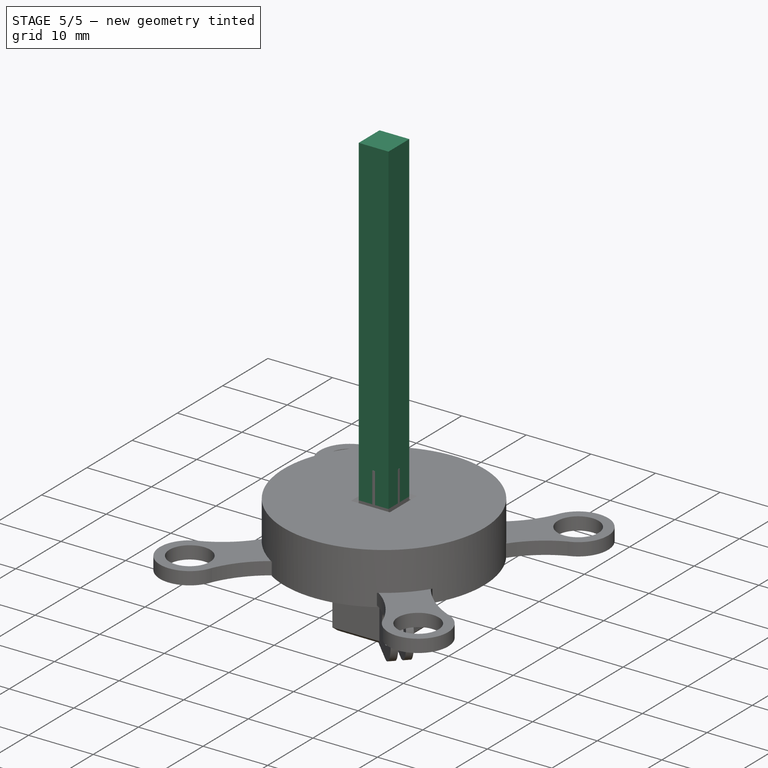
[diagram: stage 5 of 5 — iso view after this stage's code; geometry added in this stage tinted green]
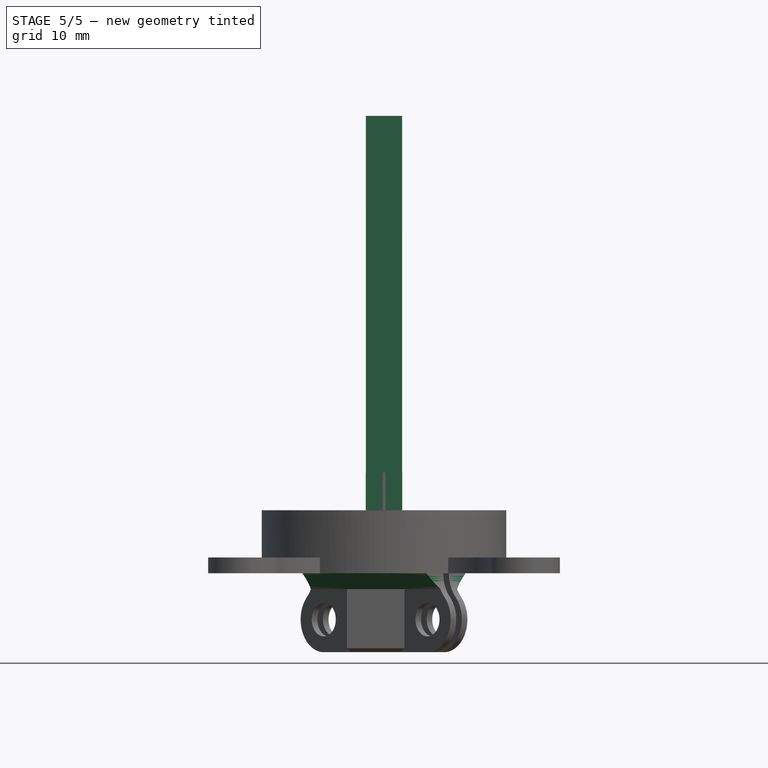
[diagram: stage 5 of 5 — front view after this stage's code; geometry added in this stage tinted green]
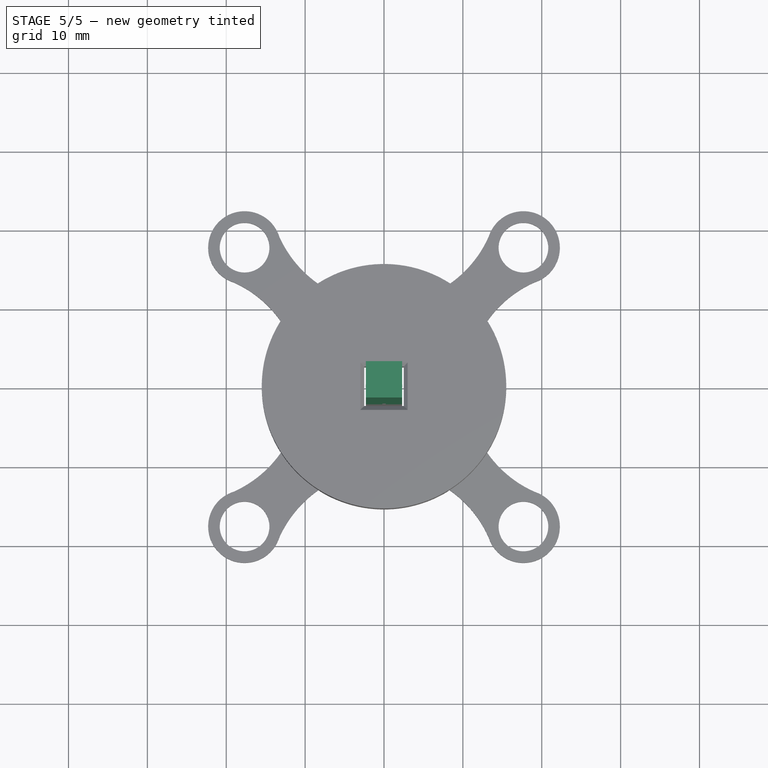
[diagram: stage 5 of 5 — top view after this stage's code; geometry added in this stage tinted green]
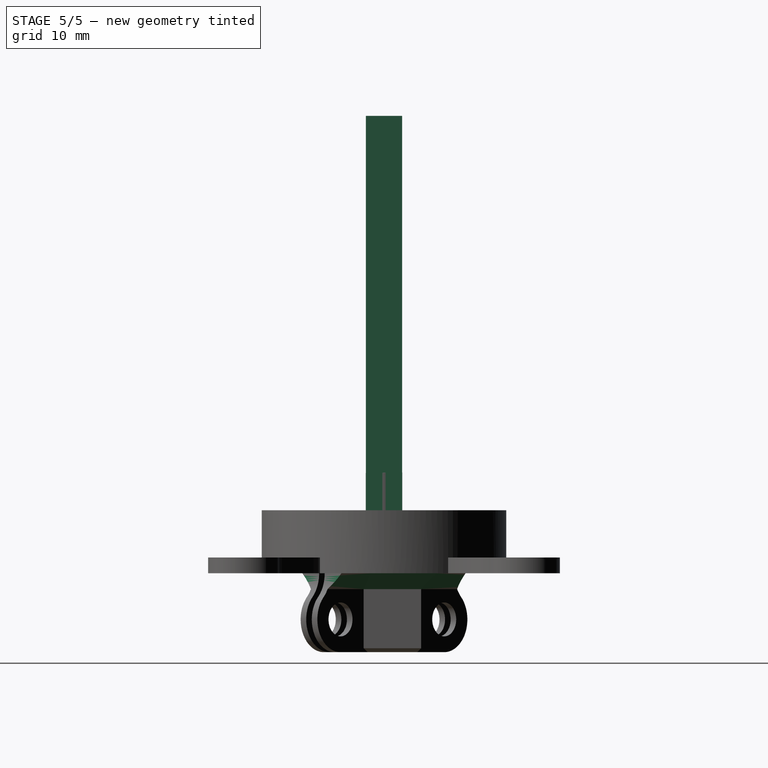
[diagram: stage 5 of 5 — right view after this stage's code; geometry added in this stage tinted green]
FEATURE [Sketcher::SketchObject] Sketch017  label="Footprint"
  MapMode = 5
  Support = -> [XY_Plane004]
  sketch-geometry (7):
    g0: LineSegment StartX=-2.3 StartY=2.3 StartZ=0 EndX=2.3 EndY=2.3 EndZ=0
    g1: LineSegment StartX=2.3 StartY=2.3 StartZ=0 EndX=2.3 EndY=-2.3 EndZ=0
    g2: LineSegment StartX=2.3 StartY=-2.3 StartZ=0 EndX=-2.3 EndY=-2.3 EndZ=0
    g3: LineSegment StartX=-2.3 StartY=-2.3 StartZ=0 EndX=-2.3 EndY=2.3 EndZ=0
    g4: LineSegment [constr] StartX=-2.3 StartY=-2.3 StartZ=0 EndX=0 EndY=0 EndZ=0
    g5: LineSegment [constr] StartX=2.3 StartY=2.3 StartZ=0 EndX=0 EndY=0 EndZ=0
    g6: LineSegment [constr] StartX=-2.3 StartY=2.3 StartZ=0 EndX=0 EndY=0 EndZ=0
  constraints (18):
    c: Coincident(g0,g1)
    c: Coincident(g1,g2)
    c: Coincident(g2,g3)
    c: Coincident(g3,g0)
    c: Horizontal(g0)
    c: Vertical(g1)
    c: Equal(g0,g3)
    c: Equal(g3,g2)
    c: Equal(g2,g1)
    c: Distance(g1) = 4.6
    c: Coincident(g4,g2)
    c: Coincident(g4,g-1)
    c: Coincident(g5,g0)
    c: Coincident(g5,g-1)
    c: Equal(g5,g4)
    c: Coincident(g6,g0)
    c: Coincident(g6,g-1)
    c: Equal(g6,g4)
FEATURE [PartDesign::Pad] Pad007
  Length = 50
  Length2 = 100
  Profile = -> Sketch017
  Type = 0
FEATURE [PartDesign::Body] Body004  label="Rod"
  Group = -> [Sketch017,Pad007]
  Origin = -> Origin004
  Tip = -> Pad007
FEATURE [Part::Part2DObjectPython] ShapeString  # Draft 2D object (typed FeaturePython)
  FontFile = <userpath>/AsteroidLab/Fonts/Ubuntu-B.ttf
  Placement = pos=(-15.6761,-13.6124,-8) rot=(0.92346,0.383694,0;3.14159rad)
  Size = 2
  String = V2.1
  Support = -> [Pocket004]
  Tracking = 0
FEATURE [PartDesign::Pocket] Pocket006
  BaseFeature = -> Pocket004
  Length = 0.2
  Length2 = 100
  Profile = -> ShapeString
  Type = 0
FEATURE [PartDesign::Chamfer] Chamfer
  Base = -> Pocket006 [Edge289,Edge292,Edge305,Edge310]
  BaseFeature = -> Pocket006
  Size = 0.5
FEATURE [PartDesign::Chamfer] Chamfer001
  Base = -> Chamfer [Edge3,Edge11,Edge102,Edge104,Edge103,Edge105,Edge107,Edge109]
  BaseFeature = -> Chamfer
  Size = 2
FEATURE [PartDesign::Chamfer] Chamfer002
  Base = -> Chamfer001 [Edge406,Edge410,Edge403,Edge408]
  BaseFeature = -> Chamfer001
  Size = 0.5
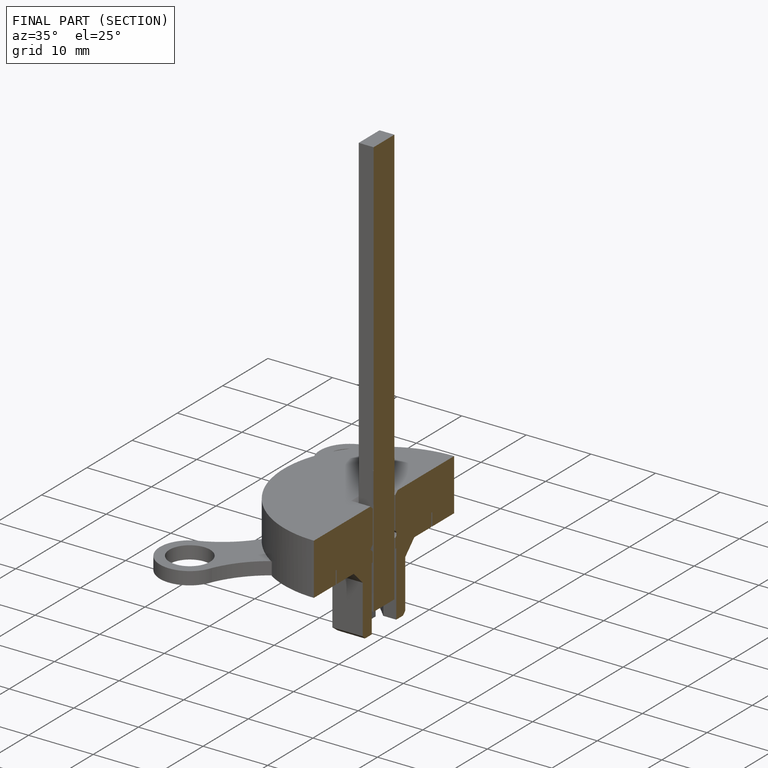
[diagram: finished part — half-section view (interior)]
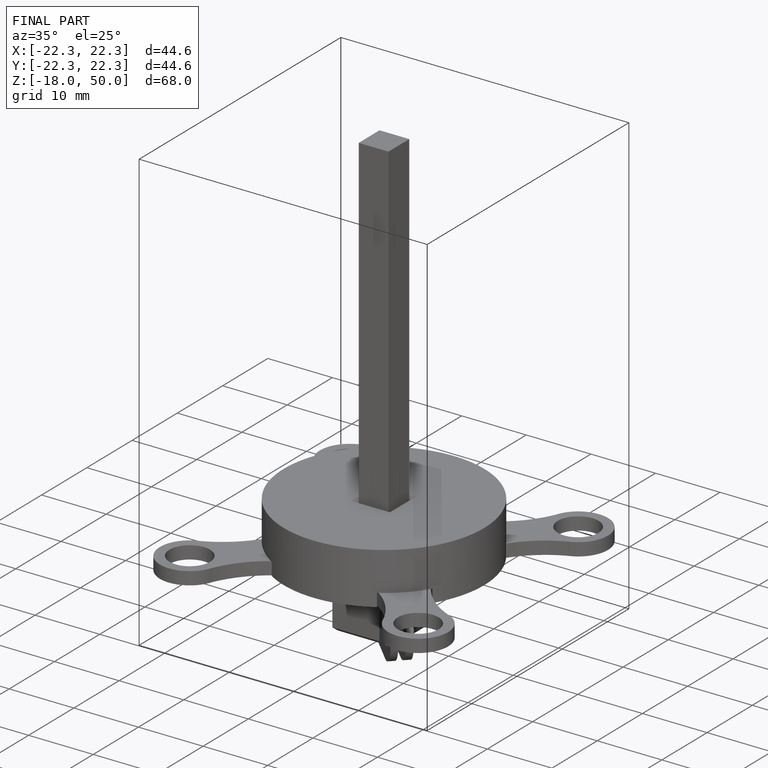
[diagram: finished part — iso view with bounding-box wireframe]
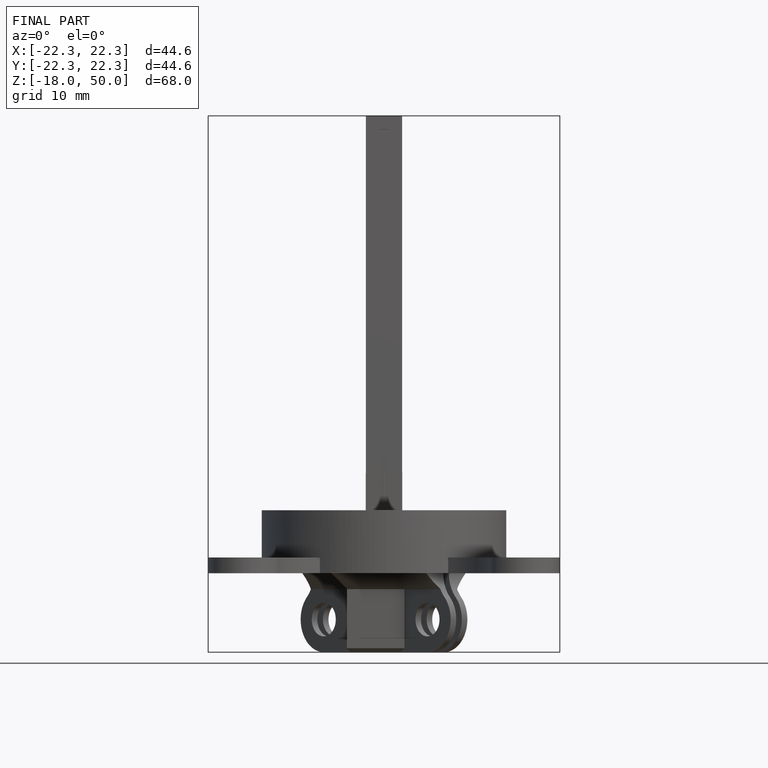
[diagram: finished part — front view with bounding-box wireframe]
